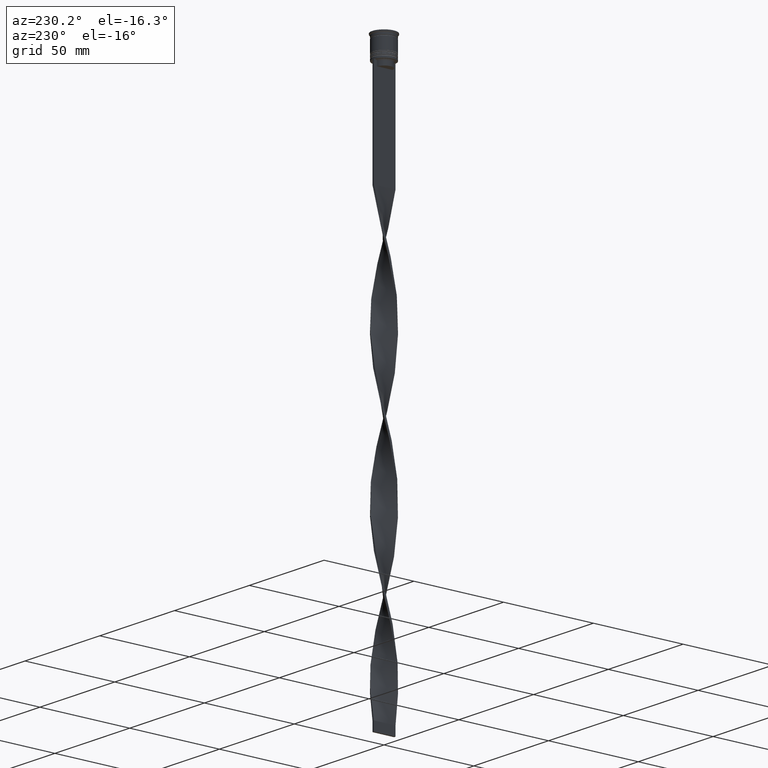
[diagram: clean part render]
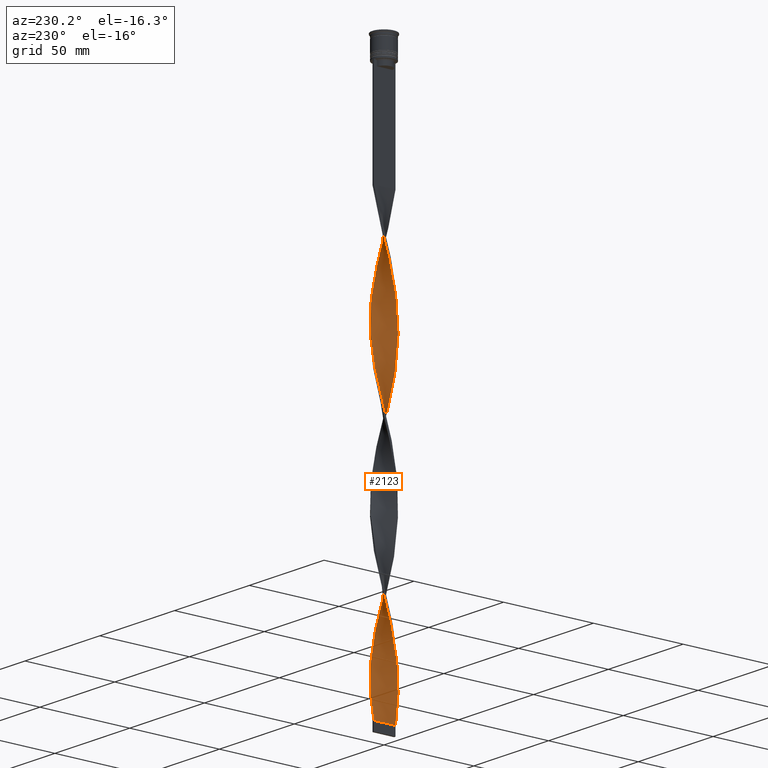
[diagram: same view with one face highlighted and labeled with its STEP entity id]
A machine part, auxiliary view. The second image highlights one B-rep face of the part: STEP entity #2123.
In plain terms, the highlighted face is a freeform B-spline surface patch.
Its self-contained STEP definition (entity closure, byte-faithful):
#7 = CARTESIAN_POINT ( 'NONE',  ( 3.889087296526011706, -4.596194077712560500, -168.0833333333333712 ) ) ;
#8 = CARTESIAN_POINT ( 'NONE',  ( 3.527358977712831134, 4.902271885939097906, -130.2416666666667027 ) ) ;
#10 = ORIENTED_EDGE ( 'NONE', *, *, #1349, .F. ) ;
#11 = CARTESIAN_POINT ( 'NONE',  ( 5.969343698769574935, -0.9173149989399220772, -102.3583333333333485 ) ) ;
#25 = CARTESIAN_POINT ( 'NONE',  ( -3.572323752398605556, -4.869603064867703779, -293.5583333333333940 ) ) ;
#26 = CARTESIAN_POINT ( 'NONE',  ( -4.290116269486020428, 4.250815615339193165, -166.0916666666666686 ) ) ;
#31 = CARTESIAN_POINT ( 'NONE',  ( -5.847912811050710147, -1.432450960538953044, -191.9833333333333485 ) ) ;
#47 = CARTESIAN_POINT ( 'NONE',  ( 0.9722102409477152429, 5.960649146587692293, -225.8416666666666970 ) ) ;
#48 = CARTESIAN_POINT ( 'NONE',  ( -4.596194077712557835, 3.889087296526011706, -168.0833333333333712 ) ) ;
#55 = CARTESIAN_POINT ( 'NONE',  ( -1.892691680130197174, 5.735176475513731553, -154.1416666666666799 ) ) ;
#69 = CARTESIAN_POINT ( 'NONE',  ( -0.5000000000000009992, -6.000000000000000888, -307.5000000000000000 ) ) ;
#70 = CARTESIAN_POINT ( 'NONE',  ( 0.9722102409477109131, -5.960649146587691405, -70.49166666666670267 ) ) ;
#75 = CARTESIAN_POINT ( 'NONE',  ( -4.596194077712557835, 3.889087296526011706, -168.0833333333333712 ) ) ;
#89 = CARTESIAN_POINT ( 'NONE',  ( -2.329630224397260196, 5.551830600583447684, -156.1333333333333542 ) ) ;
#94 = CARTESIAN_POINT ( 'NONE',  ( -2.766568768664324995, 5.368484725653163814, -158.1250000000000284 ) ) ;
#110 = CARTESIAN_POINT ( 'NONE',  ( 2.717047055421899948, 5.393717298852743980, -293.5583333333334508 ) ) ;
#136 = CARTESIAN_POINT ( 'NONE',  ( -4.869603064867704667, -3.572323752398602004, -201.9416666666667197 ) ) ;
#140 = CARTESIAN_POINT ( 'NONE',  ( -6.004347276090943097, -0.4447626199438159400, -112.3166666666666771 ) ) ;
#141 = CARTESIAN_POINT ( 'NONE',  ( 5.999999999999999112, 0.4999999999999998890, -267.6666666666667425 ) ) ;
#156 = CARTESIAN_POINT ( 'NONE',  ( -5.752351491147214446, 1.839832417264297026, -178.0416666666667140 ) ) ;
#160 = CARTESIAN_POINT ( 'NONE',  ( -5.960649146587693181, 0.9722102409477114682, -106.3416666666666686 ) ) ;
#175 = CARTESIAN_POINT ( 'NONE',  ( 4.290116269486021316, -4.250815615339192277, -245.7583333333333826 ) ) ;
#180 = CARTESIAN_POINT ( 'NONE',  ( -5.368484725653164702, 2.766568768664326772, -98.37500000000001421 ) ) ;
#197 = CARTESIAN_POINT ( 'NONE',  ( -5.393717298852745756, 2.717047055421897728, -174.0583333333333371 ) ) ;
#202 = CARTESIAN_POINT ( 'NONE',  ( -6.004347276090943097, -0.4447626199438159400, -112.3166666666666771 ) ) ;
#203 = CARTESIAN_POINT ( 'NONE',  ( -0.4447626199438162731, 6.004347276090943097, -72.48333333333334849 ) ) ;
#215 = CARTESIAN_POINT ( 'NONE',  ( -0.4447626199438174388, -6.004347276090940433, -223.8500000000000227 ) ) ;
#219 = CARTESIAN_POINT ( 'NONE',  ( -3.889087296526011706, 4.596194077712559611, -88.41666666666667140 ) ) ;
#225 = VERTEX_POINT ( 'NONE', #1643 ) ;
#234 = CARTESIAN_POINT ( 'NONE',  ( 0.9173149989399225213, 5.969343698769574935, -301.5250000000000341 ) ) ;
#238 = CARTESIAN_POINT ( 'NONE',  ( 2.766568768664329880, 5.368484725653162926, -217.8750000000000568 ) ) ;
#257 = CARTESIAN_POINT ( 'NONE',  ( 3.169446260531464610, -5.119043895260433352, -239.7833333333333599 ) ) ;
#261 = CARTESIAN_POINT ( 'NONE',  ( 2.278439736343095934, -5.573034394999981878, -160.1166666666666742 ) ) ;
#263 = CARTESIAN_POINT ( 'NONE',  ( -0.4447626199438162731, 6.004347276090943097, -231.8166666666666629 ) ) ;
#265 = CARTESIAN_POINT ( 'NONE',  ( 4.290116269486021316, -4.250815615339192277, -86.42499999999999716 ) ) ;
#275 = EDGE_CURVE ( 'NONE', #225, #3604, #1063, .T. ) ;
#280 = CARTESIAN_POINT ( 'NONE',  ( 0.02778975905228940960, 6.039350853412312148, -229.8250000000000171 ) ) ;
#281 = CARTESIAN_POINT ( 'NONE',  ( 4.290116269486023981, 4.250815615339191389, -209.9083333333333883 ) ) ;
#296 = CARTESIAN_POINT ( 'NONE',  ( -5.860847594958396911, -1.378573708102107220, -275.6333333333333258 ) ) ;
#297 = CARTESIAN_POINT ( 'NONE',  ( -5.860847594958396911, -1.378573708102107220, -275.6333333333333258 ) ) ;
#300 = CARTESIAN_POINT ( 'NONE',  ( 2.766568768664325884, -5.368484725653162926, -78.45833333333334281 ) ) ;
#316 = CARTESIAN_POINT ( 'NONE',  ( 5.960649146587692293, -0.9722102409477147988, -186.0083333333333258 ) ) ;
#317 = CARTESIAN_POINT ( 'NONE',  ( 4.250815615339191389, -4.290116269486023981, -170.0750000000000455 ) ) ;
#334 = CARTESIAN_POINT ( 'NONE',  ( 5.551830600583448572, -2.329630224397262417, -180.0333333333333599 ) ) ;
#335 = CARTESIAN_POINT ( 'NONE',  ( 3.122203016567365097, 5.147994592395919611, -132.2333333333333485 ) ) ;
#341 = CARTESIAN_POINT ( 'NONE',  ( -4.902271885939096130, 3.527358977712832910, -170.0750000000000455 ) ) ;
#347 = B_SPLINE_CURVE_WITH_KNOTS ( 'NONE', 3,
 ( #405, #3274, #1669, #2939 ),
 .UNSPECIFIED., .F., .F.,
 ( 4, 4 ),
 ( 0.000000000000000000, 1.000000000000000000 ),
 .UNSPECIFIED. ) ;
#355 = CARTESIAN_POINT ( 'NONE',  ( -0.9173149989399220772, 5.969343698769576712, -233.8083333333333371 ) ) ;
#356 = CARTESIAN_POINT ( 'NONE',  ( -0.9722102409477103580, 5.960649146587691405, -150.1583333333333599 ) ) ;
#361 = CARTESIAN_POINT ( 'NONE',  ( -5.735176475513732441, -1.892691680130194065, -193.9750000000000227 ) ) ;
#377 = CARTESIAN_POINT ( 'NONE',  ( 3.572323752398604224, -4.869603064867703779, -82.44166666666666288 ) ) ;
#383 = CARTESIAN_POINT ( 'NONE',  ( 5.368484725653162926, 2.766568768664325439, -118.2916666666666998 ) ) ;
#397 = CARTESIAN_POINT ( 'NONE',  ( 5.368484725653162926, 2.766568768664325439, -118.2916666666666998 ) ) ;
#402 = CARTESIAN_POINT ( 'NONE',  ( -5.999999999999999112, -0.4999999999999991673, -188.0000000000000000 ) ) ;
#405 = CARTESIAN_POINT ( 'NONE',  ( -0.5000000000000009992, -6.000000000000000888, -307.5000000000000000 ) ) ;
#415 = CARTESIAN_POINT ( 'NONE',  ( 2.329630224397261085, -5.551830600583446795, -76.46666666666666856 ) ) ;
#421 = CARTESIAN_POINT ( 'NONE',  ( 4.290116269486021316, -4.250815615339192277, -245.7583333333333826 ) ) ;
#436 = CARTESIAN_POINT ( 'NONE',  ( 5.147994592395920499, -3.122203016567364209, -251.7333333333333769 ) ) ;
#443 = CARTESIAN_POINT ( 'NONE',  ( -3.122203016567365541, 5.147994592395922275, -84.43333333333333712 ) ) ;
#462 = CARTESIAN_POINT ( 'NONE',  ( 4.560209340103447140, 3.931220010942311216, -283.6000000000000227 ) ) ;
#466 = CARTESIAN_POINT ( 'NONE',  ( -0.5000000000000009992, -6.000000000000000888, -148.1666666666666572 ) ) ;
#481 = CARTESIAN_POINT ( 'NONE',  ( 4.869603064867703779, 3.572323752398604224, -281.6083333333334622 ) ) ;
#485 = CARTESIAN_POINT ( 'NONE',  ( 0.02778975905228941307, 6.039350853412311260, -70.49166666666670267 ) ) ;
#501 = CARTESIAN_POINT ( 'NONE',  ( -3.527358977712832910, -4.902271885939095242, -209.9083333333333883 ) ) ;
#507 = CARTESIAN_POINT ( 'NONE',  ( -5.393717298852746644, -2.717047055421899948, -122.2750000000000341 ) ) ;
#523 = CARTESIAN_POINT ( 'NONE',  ( 3.169446260531464610, -5.119043895260433352, -239.7833333333333599 ) ) ;
#524 = CARTESIAN_POINT ( 'NONE',  ( -1.378573708102108997, -5.860847594958394247, -219.8666666666666742 ) ) ;
#528 = CARTESIAN_POINT ( 'NONE',  ( -2.766568768664327216, -5.368484725653164702, -138.2083333333333144 ) ) ;
#544 = CARTESIAN_POINT ( 'NONE',  ( -5.969343698769576712, -0.9173149989399216331, -114.3083333333333655 ) ) ;
#545 = CARTESIAN_POINT ( 'NONE',  ( 5.960649146587693181, -0.9722102409477149099, -186.0083333333333258 ) ) ;
#558 = CARTESIAN_POINT ( 'NONE',  ( 3.122203016567365097, 5.147994592395919611, -291.5666666666667197 ) ) ;
#561 = CARTESIAN_POINT ( 'NONE',  ( 0.02778975905228940960, 6.039350853412312148, -70.49166666666668846 ) ) ;
#562 = CARTESIAN_POINT ( 'NONE',  ( 0.02778975905228941307, 6.039350853412311260, -229.8250000000000455 ) ) ;
#566 = CARTESIAN_POINT ( 'NONE',  ( 3.572323752398604224, -4.869603064867703779, -82.44166666666667709 ) ) ;
#584 = CARTESIAN_POINT ( 'NONE',  ( -2.717047055421899948, 5.393717298852747533, -241.7750000000000341 ) ) ;
#585 = CARTESIAN_POINT ( 'NONE',  ( 1.378573708102106776, -5.860847594958396911, -156.1333333333333542 ) ) ;
#599 = CARTESIAN_POINT ( 'NONE',  ( -5.847912811050711923, 1.432450960538954821, -263.6833333333333940 ) ) ;
#600 = CARTESIAN_POINT ( 'NONE',  ( -5.960649146587693181, 0.9722102409477114682, -265.6750000000000682 ) ) ;
#616 = CARTESIAN_POINT ( 'NONE',  ( 6.004347276090943097, 0.4447626199438150518, -191.9833333333333485 ) ) ;
#617 = CARTESIAN_POINT ( 'NONE',  ( 6.039350853412311260, -0.02778975905228783447, -189.9916666666667027 ) ) ;
#638 = CARTESIAN_POINT ( 'NONE',  ( 6.000000000000000888, -0.5000000000000013323, -188.0000000000000000 ) ) ;
#639 = CARTESIAN_POINT ( 'NONE',  ( 4.250815615339192277, 4.290116269486020428, -126.2583333333333258 ) ) ;
#646 = CARTESIAN_POINT ( 'NONE',  ( 5.999999999999999112, 0.4999999999999998890, -108.3333333333333428 ) ) ;
#657 = CARTESIAN_POINT ( 'NONE',  ( 4.290116269486023981, 4.250815615339191389, -209.9083333333333599 ) ) ;
#658 = CARTESIAN_POINT ( 'NONE',  ( -3.169446260531463722, 5.119043895260433352, -160.1166666666666742 ) ) ;
#665 = CARTESIAN_POINT ( 'NONE',  ( -0.9722102409477102469, 5.960649146587690517, -150.1583333333333599 ) ) ;
#678 = CARTESIAN_POINT ( 'NONE',  ( 6.004347276090941321, -0.4447626199438162731, -104.3499999999999943 ) ) ;
#683 = CARTESIAN_POINT ( 'NONE',  ( -4.290116269486020428, 4.250815615339193165, -166.0916666666666970 ) ) ;
#703 = CARTESIAN_POINT ( 'NONE',  ( -1.892691680130198728, -5.735176475513733330, -301.5250000000000341 ) ) ;
#710 = CARTESIAN_POINT ( 'NONE',  ( -4.560209340103448028, -3.931220010942310328, -203.9333333333333655 ) ) ;
#724 = CARTESIAN_POINT ( 'NONE',  ( 1.432450960538954154, -5.847912811050710147, -72.48333333333334849 ) ) ;
#729 = CARTESIAN_POINT ( 'NONE',  ( -5.573034394999980101, 2.278439736343096822, -176.0500000000000114 ) ) ;
#744 = CARTESIAN_POINT ( 'NONE',  ( 5.999999999999999112, 0.4999999999999998890, -267.6666666666667425 ) ) ;
#748 = CARTESIAN_POINT ( 'NONE',  ( -3.931220010942313881, -4.560209340103448028, -132.2333333333333485 ) ) ;
#749 = CARTESIAN_POINT ( 'NONE',  ( 5.368484725653162926, 2.766568768664325439, -277.6250000000000568 ) ) ;
#764 = CARTESIAN_POINT ( 'NONE',  ( -5.368484725653162037, -2.766568768664326772, -197.9583333333333997 ) ) ;
#770 = CARTESIAN_POINT ( 'NONE',  ( -5.119043895260434240, 3.169446260531465498, -96.38333333333335418 ) ) ;
#771 = CARTESIAN_POINT ( 'NONE',  ( 3.572323752398604224, -4.869603064867703779, -241.7750000000000341 ) ) ;
#790 = CARTESIAN_POINT ( 'NONE',  ( -3.889087296526011706, -4.596194077712557835, -207.9166666666666572 ) ) ;
#794 = CARTESIAN_POINT ( 'NONE',  ( -4.560209340103448916, 3.931220010942312992, -92.40000000000000568 ) ) ;
#810 = CARTESIAN_POINT ( 'NONE',  ( 5.735176475513731553, 1.892691680130197396, -273.6416666666666515 ) ) ;
#813 = CARTESIAN_POINT ( 'NONE',  ( -6.000000000000000888, 0.5000000000000005551, -108.3333333333333428 ) ) ;
#827 = CARTESIAN_POINT ( 'NONE',  ( 2.329630224397261085, -5.551830600583446795, -235.8000000000000114 ) ) ;
#832 = CARTESIAN_POINT ( 'NONE',  ( -3.931220010942313881, -4.560209340103448028, -132.2333333333333485 ) ) ;
#833 = CARTESIAN_POINT ( 'NONE',  ( -1.892691680130198728, -5.735176475513733330, -142.1916666666666913 ) ) ;
#852 = CARTESIAN_POINT ( 'NONE',  ( 1.432450960538954154, -5.847912811050710147, -231.8166666666666629 ) ) ;
#856 = CARTESIAN_POINT ( 'NONE',  ( -5.573034394999981878, -2.278439736343096378, -279.6166666666666742 ) ) ;
#868 = CARTESIAN_POINT ( 'NONE',  ( 2.329630224397261085, -5.551830600583446795, -235.8000000000000114 ) ) ;
#873 = CARTESIAN_POINT ( 'NONE',  ( 0.9173149989399214110, -5.969343698769576712, -154.1416666666666799 ) ) ;
#874 = CARTESIAN_POINT ( 'NONE',  ( 0.5000000000000002220, 6.000000000000000888, -227.8333333333333428 ) ) ;
#879 = ORIENTED_EDGE ( 'NONE', *, *, #3958, .F. ) ;
#890 = CARTESIAN_POINT ( 'NONE',  ( 5.119043895260433352, -3.169446260531466386, -176.0500000000000114 ) ) ;
#893 = CARTESIAN_POINT ( 'NONE',  ( 5.368484725653162926, -2.766568768664329436, -178.0416666666667140 ) ) ;
#914 = CARTESIAN_POINT ( 'NONE',  ( -0.4447626199438162731, 6.004347276090943097, -231.8166666666666629 ) ) ;
#915 = CARTESIAN_POINT ( 'NONE',  ( 5.147994592395923164, 3.122203016567364209, -203.9333333333333655 ) ) ;
#919 = CARTESIAN_POINT ( 'NONE',  ( 0.5000000000000002220, -5.999999999999999112, -68.50000000000000000 ) ) ;
#920 = DIRECTION ( 'NONE',  ( 0.000000000000000000, 1.000000000000000000, 0.000000000000000000 ) ) ;
#931 = ORIENTED_EDGE ( 'NONE', *, *, #1742, .T. ) ;
#932 = CARTESIAN_POINT ( 'NONE',  ( 3.572323752398604224, 4.869603064867704667, -213.8916666666666799 ) ) ;
#933 = CARTESIAN_POINT ( 'NONE',  ( -3.122203016567365541, 5.147994592395922275, -243.7666666666666799 ) ) ;
#936 = CARTESIAN_POINT ( 'NONE',  ( 4.902271885939097906, -3.527358977712830246, -90.40833333333335986 ) ) ;
#947 = CARTESIAN_POINT ( 'NONE',  ( -4.290116269486023093, -4.250815615339194053, -289.5750000000000455 ) ) ;
#948 = CARTESIAN_POINT ( 'NONE',  ( -0.4999999999999994449, 5.999999999999999112, -148.1666666666666572 ) ) ;
#951 = CARTESIAN_POINT ( 'NONE',  ( -1.432450960538953488, 5.847912811050710147, -152.1500000000000057 ) ) ;
#970 = CARTESIAN_POINT ( 'NONE',  ( -1.378573708102107664, 5.860847594958396023, -235.8000000000000114 ) ) ;
#971 = CARTESIAN_POINT ( 'NONE',  ( -1.432450960538955043, -5.847912811050711035, -303.5166666666666515 ) ) ;
#978 = CARTESIAN_POINT ( 'NONE',  ( 0.9173149989399225213, 5.969343698769574935, -142.1916666666666913 ) ) ;
#990 = CARTESIAN_POINT ( 'NONE',  ( -4.902271885939099683, -3.527358977712830246, -285.5916666666666401 ) ) ;
#997 = CARTESIAN_POINT ( 'NONE',  ( 5.119043895260433352, 3.169446260531464610, -120.2833333333333456 ) ) ;
#1010 = CARTESIAN_POINT ( 'NONE',  ( 2.717047055421899948, 5.393717298852743980, -134.2249999999999943 ) ) ;
#1015 = CARTESIAN_POINT ( 'NONE',  ( -5.551830600583447684, -2.329630224397259752, -195.9666666666666686 ) ) ;
#1033 = CARTESIAN_POINT ( 'NONE',  ( 4.560209340103447140, 3.931220010942311216, -124.2666666666666799 ) ) ;
#1040 = CARTESIAN_POINT ( 'NONE',  ( -2.278439736343097710, -5.573034394999980101, -215.8833333333333542 ) ) ;
#1053 = CARTESIAN_POINT ( 'NONE',  ( 0.5000000000000002220, -5.999999999999999112, -68.50000000000000000 ) ) ;
#1056 = CARTESIAN_POINT ( 'NONE',  ( -5.969343698769574047, 0.9173149989399200788, -182.0250000000000341 ) ) ;
#1062 = CARTESIAN_POINT ( 'NONE',  ( 0.5000000000000002220, -5.999999999999999112, -227.8333333333333428 ) ) ;
#1063 =( BOUNDED_CURVE ( )  B_SPLINE_CURVE ( 2, ( #2085, #561, #2131, #3736, #1791, #2733, #3355, #1749, #2717, #3693, #4063, #3986, #2437, #1769, #2065, #180, #1444, #1123, #2396, #1499, #813, #3048, #202, #544, #1480, #4045, #1162, #4003, #3417, #3673, #3378, #1463, #832, #1207, #2108, #528, #3065, #1808, #3083, #1827, #2773, #1188, #2458, #873, #2146, #3105, #261, #1522, #2795, #2475, #7, #3515, #1307, #3494, #890, #4080, #334, #1616, #3123, #316, #638, #3832, #616, #4102, #1541, #2244, #2220, #1263, #3181, #1281, #2580, #657, #1246, #932, #2165, #1930, #3458, #2186, #3200, #47, #3438, #280, #914, #355, #970, #2850, #1909, #584, #1222, #1579, #2536, #3794, #2812, #1850, #3811, #3160, #3776, #3140, #599, #2497, #1869, #2867, #2886, #2202, #296, #3475, #2517, #1557, #2829, #1886, #2553, #947, #1596, #25, #3875, #3555, #2330, #3245, #3283, #2666, #69 ),
 .UNSPECIFIED., .F., .T. ) 
 B_SPLINE_CURVE_WITH_KNOTS ( ( 3, 2, 2, 2, 2, 2, 2, 2, 2, 2, 2, 2, 2, 2, 2, 2, 2, 2, 2, 2, 2, 2, 2, 2, 2, 2, 2, 2, 2, 2, 2, 2, 2, 2, 2, 2, 2, 2, 2, 2, 2, 2, 2, 2, 2, 2, 2, 2, 2, 2, 2, 2, 2, 2, 2, 2, 2, 2, 2, 2, 3 ),
 ( 0.000000000000000000, 0.01250000000000000243, 0.02500000000000000486, 0.03749999999999999861, 0.05000000000000000971, 0.06250000000000000000, 0.07499999999999999722, 0.08749999999999998057, 0.1000000000000000194, 0.1125000000000000028, 0.1250000000000000000, 0.1375000000000000111, 0.1499999999999999944, 0.1625000000000000056, 0.1749999999999999611, 0.1875000000000000000, 0.2000000000000000389, 0.2124999999999999944, 0.2250000000000000056, 0.2374999999999999611, 0.2500000000000000000, 0.2625000000000000111, 0.2750000000000000222, 0.2874999999999999778, 0.2999999999999999889, 0.3125000000000000000, 0.3250000000000000111, 0.3375000000000000777, 0.3499999999999999223, 0.3624999999999999889, 0.3750000000000000000, 0.3875000000000000111, 0.4000000000000000777, 0.4124999999999999223, 0.4249999999999999889, 0.4375000000000000000, 0.4500000000000000111, 0.4625000000000000777, 0.4749999999999999223, 0.4874999999999999889, 0.5000000000000000000, 0.5124999999999999556, 0.5250000000000000222, 0.5374999999999999778, 0.5500000000000000444, 0.5625000000000000000, 0.5749999999999999556, 0.5875000000000000222, 0.5999999999999999778, 0.6125000000000000444, 0.6250000000000000000, 0.6374999999999999556, 0.6500000000000000222, 0.6624999999999999778, 0.6750000000000001554, 0.6875000000000000000, 0.6999999999999998446, 0.7125000000000000222, 0.7249999999999999778, 0.7375000000000001554, 0.7500000000000000000 ),
 .UNSPECIFIED. ) 
 CURVE ( )  GEOMETRIC_REPRESENTATION_ITEM ( )  RATIONAL_B_SPLINE_CURVE ( ( 1.000000000000000000, 0.9969173337331279638, 1.000000000000000000, 0.9969173337331279638, 1.000000000000000000, 0.9969173337331279638, 1.000000000000000000, 0.9969173337331279638, 1.000000000000000000, 0.9969173337331279638, 1.000000000000000000, 0.9969173337331279638, 1.000000000000000000, 0.9969173337331279638, 1.000000000000000000, 0.9969173337331279638, 1.000000000000000000, 0.9969173337331279638, 1.000000000000000000, 0.9969173337331279638, 1.000000000000000000, 0.9969173337331279638, 1.000000000000000000, 0.9969173337331279638, 1.000000000000000000, 0.9969173337331279638, 1.000000000000000000, 0.9969173337331279638, 1.000000000000000000, 0.9969173337331279638, 1.000000000000000000, 0.9969173337331279638, 1.000000000000000000, 0.9969173337331279638, 1.000000000000000000, 0.9969173337331279638, 1.000000000000000000, 0.9969173337331279638, 1.000000000000000000, 0.9969173337331279638, 1.000000000000000000, 0.9969173337331279638, 1.000000000000000000, 0.9969173337331279638, 1.000000000000000000, 0.9969173337331279638, 1.000000000000000000, 0.9969173337331279638, 1.000000000000000000, 0.9969173337331279638, 1.000000000000000000, 0.9969173337331279638, 1.000000000000000000, 0.9969173337331279638, 1.000000000000000000, 0.9969173337331279638, 1.000000000000000000, 0.9969173337331279638, 1.000000000000000000, 0.9969173337331279638, 1.000000000000000000, 0.9969173337331279638, 1.000000000000000000, 0.9969173337331279638, 1.000000000000000000, 0.9969173337331279638, 1.000000000000000000, 0.9969173337331279638, 1.000000000000000000, 0.9969173337331279638, 1.000000000000000000, 0.9969173337331279638, 1.000000000000000000, 0.9969173337331279638, 1.000000000000000000, 0.9969173337331279638, 1.000000000000000000, 0.9969173337331279638, 1.000000000000000000, 0.9969173337331279638, 1.000000000000000000, 0.9969173337331279638, 1.000000000000000000, 0.9969173337331279638, 1.000000000000000000, 0.9969173337331279638, 1.000000000000000000, 0.9969173337331279638, 1.000000000000000000, 0.9969173337331279638, 1.000000000000000000, 0.9969173337331279638, 1.000000000000000000, 0.9969173337331279638, 1.000000000000000000, 0.9969173337331279638, 1.000000000000000000, 0.9969173337331279638, 1.000000000000000000, 0.9969173337331279638, 1.000000000000000000, 0.9969173337331279638, 1.000000000000000000, 0.9969173337331279638, 1.000000000000000000, 0.9969173337331279638, 1.000000000000000000, 0.9969173337331279638, 1.000000000000000000, 0.9969173337331279638, 1.000000000000000000, 0.9969173337331279638, 1.000000000000000000, 0.9969173337331279638, 1.000000000000000000, 0.9969173337331279638, 1.000000000000000000, 0.9969173337331279638, 1.000000000000000000, 0.9969173337331279638, 1.000000000000000000 ) ) 
 REPRESENTATION_ITEM ( '' )  );
#1077 = CARTESIAN_POINT ( 'NONE',  ( -1.378573708102108997, -5.860847594958394247, -219.8666666666666742 ) ) ;
#1081 = CARTESIAN_POINT ( 'NONE',  ( -1.432450960538955043, -5.847912811050711035, -144.1833333333333371 ) ) ;
#1097 = CARTESIAN_POINT ( 'NONE',  ( 2.766568768664325884, -5.368484725653162926, -237.7916666666667140 ) ) ;
#1120 = CARTESIAN_POINT ( 'NONE',  ( 3.122203016567365097, 5.147994592395919611, -291.5666666666667197 ) ) ;
#1123 = CARTESIAN_POINT ( 'NONE',  ( -5.735176475513733330, 1.892691680130198728, -102.3583333333333485 ) ) ;
#1124 = CARTESIAN_POINT ( 'NONE',  ( -2.278439736343096378, 5.573034394999981878, -80.45000000000000284 ) ) ;
#1135 = EDGE_LOOP ( 'NONE', ( #879, #931, #10, #3529 ) ) ;
#1137 = CARTESIAN_POINT ( 'NONE',  ( 3.931220010942312104, -4.560209340103447140, -243.7666666666666799 ) ) ;
#1141 = CARTESIAN_POINT ( 'NONE',  ( -4.596194077712559611, -3.889087296526011706, -128.2500000000000000 ) ) ;
#1157 = CARTESIAN_POINT ( 'NONE',  ( -0.4999999999999994449, 5.999999999999999112, -307.5000000000000000 ) ) ;
#1162 = CARTESIAN_POINT ( 'NONE',  ( -5.573034394999981878, -2.278439736343096378, -120.2833333333333456 ) ) ;
#1164 = CARTESIAN_POINT ( 'NONE',  ( 4.902271885939098794, 3.527358977712832910, -205.9250000000000114 ) ) ;
#1188 = CARTESIAN_POINT ( 'NONE',  ( -0.02778975905229016594, -6.039350853412312148, -150.1583333333333599 ) ) ;
#1189 = CARTESIAN_POINT ( 'NONE',  ( 4.869603064867705555, -3.572323752398603780, -174.0583333333333371 ) ) ;
#1202 = CARTESIAN_POINT ( 'NONE',  ( 5.960649146587690517, 0.9722102409477104690, -269.6583333333334167 ) ) ;
#1207 = CARTESIAN_POINT ( 'NONE',  ( -3.572323752398605556, -4.869603064867703779, -134.2250000000000227 ) ) ;
#1208 = CARTESIAN_POINT ( 'NONE',  ( 3.572323752398604224, 4.869603064867705555, -213.8916666666666799 ) ) ;
#1222 = CARTESIAN_POINT ( 'NONE',  ( -3.122203016567365541, 5.147994592395922275, -243.7666666666666799 ) ) ;
#1224 = CARTESIAN_POINT ( 'NONE',  ( -5.368484725653164702, 2.766568768664326772, -257.7083333333333144 ) ) ;
#1241 = CARTESIAN_POINT ( 'NONE',  ( 1.378573708102107886, 5.860847594958394247, -299.5333333333333030 ) ) ;
#1246 = CARTESIAN_POINT ( 'NONE',  ( 3.931220010942314769, 4.560209340103448028, -211.9000000000000057 ) ) ;
#1247 = CARTESIAN_POINT ( 'NONE',  ( 6.004347276090943097, 0.4447626199438150518, -191.9833333333333485 ) ) ;
#1263 = CARTESIAN_POINT ( 'NONE',  ( 5.393717298852748421, 2.717047055421897284, -201.9416666666667197 ) ) ;
#1264 = CARTESIAN_POINT ( 'NONE',  ( 1.378573708102107886, 5.860847594958394247, -140.1999999999999886 ) ) ;
#1267 = CARTESIAN_POINT ( 'NONE',  ( 6.039350853412309483, 0.02778975905228925000, -106.3416666666666686 ) ) ;
#1281 = CARTESIAN_POINT ( 'NONE',  ( 4.902271885939098794, 3.527358977712832910, -205.9250000000000114 ) ) ;
#1282 = CARTESIAN_POINT ( 'NONE',  ( -5.147994592395922275, -3.122203016567364653, -283.6000000000000227 ) ) ;
#1287 = CARTESIAN_POINT ( 'NONE',  ( 5.752351491147216223, -1.839832417264293918, -98.37500000000001421 ) ) ;
#1307 = CARTESIAN_POINT ( 'NONE',  ( 4.560209340103448028, -3.931220010942313881, -172.0666666666666629 ) ) ;
#1308 = CARTESIAN_POINT ( 'NONE',  ( 0.5000000000000002220, -5.999999999999999112, -68.50000000000000000 ) ) ;
#1314 = CARTESIAN_POINT ( 'NONE',  ( -2.329630224397260196, 5.551830600583447684, -156.1333333333333542 ) ) ;
#1327 = CARTESIAN_POINT ( 'NONE',  ( 4.596194077712558723, -3.889087296526011261, -88.41666666666667140 ) ) ;
#1333 = CARTESIAN_POINT ( 'NONE',  ( -5.969343698769574935, 0.9173149989399200788, -182.0250000000000341 ) ) ;
#1346 = CARTESIAN_POINT ( 'NONE',  ( -2.766568768664327216, -5.368484725653164702, -297.5416666666666856 ) ) ;
#1349 = EDGE_CURVE ( 'NONE', #3604, #3180, #347, .T. ) ;
#1353 = CARTESIAN_POINT ( 'NONE',  ( -5.393717298852746644, 2.717047055421897728, -174.0583333333333371 ) ) ;
#1371 = CARTESIAN_POINT ( 'NONE',  ( 5.393717298852743980, -2.717047055421899948, -253.7250000000000512 ) ) ;
#1394 = CARTESIAN_POINT ( 'NONE',  ( -5.735176475513732441, -1.892691680130194065, -193.9749999999999943 ) ) ;
#1399 = CARTESIAN_POINT ( 'NONE',  ( 5.551830600583447684, 2.329630224397260641, -275.6333333333333258 ) ) ;
#1417 = CARTESIAN_POINT ( 'NONE',  ( 4.596194077712558723, -3.889087296526011261, -247.7500000000000284 ) ) ;
#1421 = CARTESIAN_POINT ( 'NONE',  ( -3.169446260531465498, -5.119043895260433352, -136.2166666666666686 ) ) ;
#1439 = CARTESIAN_POINT ( 'NONE',  ( -0.9173149989399203008, -5.969343698769574047, -221.8583333333333769 ) ) ;
#1444 = CARTESIAN_POINT ( 'NONE',  ( -5.551830600583448572, 2.329630224397261973, -100.3666666666666742 ) ) ;
#1445 = CARTESIAN_POINT ( 'NONE',  ( -4.250815615339194053, 4.290116269486022205, -90.40833333333334565 ) ) ;
#1460 = CARTESIAN_POINT ( 'NONE',  ( -5.551830600583447684, -2.329630224397259752, -195.9666666666666686 ) ) ;
#1463 = CARTESIAN_POINT ( 'NONE',  ( -4.290116269486023093, -4.250815615339194053, -130.2416666666667027 ) ) ;
#1464 = CARTESIAN_POINT ( 'NONE',  ( -5.551830600583448572, 2.329630224397261973, -100.3666666666666742 ) ) ;
#1477 = CARTESIAN_POINT ( 'NONE',  ( 1.839832417264293918, 5.752351491147216223, -297.5416666666666856 ) ) ;
#1480 = CARTESIAN_POINT ( 'NONE',  ( -5.860847594958396911, -1.378573708102107220, -116.3000000000000114 ) ) ;
#1481 = CARTESIAN_POINT ( 'NONE',  ( -6.000000000000000888, 0.5000000000000005551, -108.3333333333333428 ) ) ;
#1499 = CARTESIAN_POINT ( 'NONE',  ( -5.960649146587692293, 0.9722102409477114682, -106.3416666666666686 ) ) ;
#1500 = CARTESIAN_POINT ( 'NONE',  ( 5.573034394999981878, 2.278439736343095934, -199.9500000000000171 ) ) ;
#1519 = CARTESIAN_POINT ( 'NONE',  ( 4.596194077712558723, -3.889087296526011261, -247.7500000000000284 ) ) ;
#1522 = CARTESIAN_POINT ( 'NONE',  ( 2.717047055421899060, -5.393717298852747533, -162.1083333333333769 ) ) ;
#1523 = CARTESIAN_POINT ( 'NONE',  ( -2.278439736343096378, 5.573034394999981878, -239.7833333333333599 ) ) ;
#1537 = CARTESIAN_POINT ( 'NONE',  ( -0.02778975905228881632, 6.039350853412309483, -305.5083333333334963 ) ) ;
#1541 = CARTESIAN_POINT ( 'NONE',  ( 5.860847594958396911, 1.378573708102106554, -195.9666666666666686 ) ) ;
#1542 = CARTESIAN_POINT ( 'NONE',  ( 3.931220010942314769, 4.560209340103448028, -211.9000000000000057 ) ) ;
#1557 = CARTESIAN_POINT ( 'NONE',  ( -5.393717298852747533, -2.717047055421899948, -281.6083333333334053 ) ) ;
#1559 = CARTESIAN_POINT ( 'NONE',  ( -4.560209340103448916, 3.931220010942312992, -251.7333333333333769 ) ) ;
#1564 = CARTESIAN_POINT ( 'NONE',  ( 3.169446260531464610, -5.119043895260433352, -80.45000000000000284 ) ) ;
#1579 = CARTESIAN_POINT ( 'NONE',  ( -3.527358977712831134, 4.902271885939099683, -245.7583333333333826 ) ) ;
#1580 = CARTESIAN_POINT ( 'NONE',  ( -5.393717298852746644, -2.717047055421899948, -281.6083333333334622 ) ) ;
#1585 = CARTESIAN_POINT ( 'NONE',  ( 5.860847594958394247, -1.378573708102107664, -100.3666666666666742 ) ) ;
#1586 = LINE ( 'NONE', #3543, #4035 ) ;
#1596 = CARTESIAN_POINT ( 'NONE',  ( -3.931220010942313881, -4.560209340103448028, -291.5666666666667197 ) ) ;
#1597 = CARTESIAN_POINT ( 'NONE',  ( -2.766568768664324995, 5.368484725653163814, -158.1250000000000000 ) ) ;
#1602 = CARTESIAN_POINT ( 'NONE',  ( -5.752351491147214446, 1.839832417264296804, -178.0416666666667140 ) ) ;
#1616 = CARTESIAN_POINT ( 'NONE',  ( 5.735176475513733330, -1.892691680130196730, -182.0250000000000341 ) ) ;
#1617 = CARTESIAN_POINT ( 'NONE',  ( -3.572323752398603336, 4.869603064867703779, -162.1083333333333769 ) ) ;
#1622 = CARTESIAN_POINT ( 'NONE',  ( -5.119043895260434240, -3.169446260531463722, -199.9500000000000171 ) ) ;
#1639 = CARTESIAN_POINT ( 'NONE',  ( -3.169446260531465498, -5.119043895260433352, -295.5499999999999545 ) ) ;
#1643 = CARTESIAN_POINT ( 'NONE',  ( 0.5000000000000002220, 6.000000000000000888, -68.50000000000000000 ) ) ;
#1645 = CARTESIAN_POINT ( 'NONE',  ( 1.839832417264293918, 5.752351491147216223, -138.2083333333333144 ) ) ;
#1660 = CARTESIAN_POINT ( 'NONE',  ( 0.4447626199438167727, 6.004347276090940433, -144.1833333333333371 ) ) ;
#1665 = CARTESIAN_POINT ( 'NONE',  ( -3.527358977712832910, -4.902271885939095242, -209.9083333333333599 ) ) ;
#1669 = CARTESIAN_POINT ( 'NONE',  ( -0.5000000000000000000, 1.999999999999999112, -307.5000000000000000 ) ) ;
#1679 = CARTESIAN_POINT ( 'NONE',  ( 4.869603064867703779, 3.572323752398604224, -122.2750000000000341 ) ) ;
#1685 = CARTESIAN_POINT ( 'NONE',  ( 6.004347276090941321, -0.4447626199438162731, -263.6833333333333940 ) ) ;
#1702 = CARTESIAN_POINT ( 'NONE',  ( 5.573034394999979213, -2.278439736343095934, -255.7166666666666970 ) ) ;
#1710 = CARTESIAN_POINT ( 'NONE',  ( 5.147994592395920499, -3.122203016567364209, -251.7333333333333769 ) ) ;
#1726 = CARTESIAN_POINT ( 'NONE',  ( -6.039350853412309483, -0.02778975905228582913, -186.0083333333333258 ) ) ;
#1730 = CARTESIAN_POINT ( 'NONE',  ( -0.02778975905229016594, -6.039350853412311260, -150.1583333333333599 ) ) ;
#1742 = EDGE_CURVE ( 'NONE', #3064, #3180, #2102, .T. ) ;
#1746 = CARTESIAN_POINT ( 'NONE',  ( 4.250815615339192277, 4.290116269486020428, -285.5916666666666401 ) ) ;
#1749 = CARTESIAN_POINT ( 'NONE',  ( -2.717047055421899948, 5.393717298852747533, -82.44166666666667709 ) ) ;
#1765 = CARTESIAN_POINT ( 'NONE',  ( 0.5000000000000002220, -5.999999999999999112, -227.8333333333333428 ) ) ;
#1769 = CARTESIAN_POINT ( 'NONE',  ( -4.869603064867703779, 3.572323752398605556, -94.39166666666669414 ) ) ;
#1786 = CARTESIAN_POINT ( 'NONE',  ( 3.931220010942312104, -4.560209340103447140, -243.7666666666666799 ) ) ;
#1791 = CARTESIAN_POINT ( 'NONE',  ( -1.378573708102107664, 5.860847594958396023, -76.46666666666666856 ) ) ;
#1804 = CARTESIAN_POINT ( 'NONE',  ( 0.9722102409477109131, -5.960649146587690517, -229.8250000000000171 ) ) ;
#1808 = CARTESIAN_POINT ( 'NONE',  ( -1.892691680130198728, -5.735176475513733330, -142.1916666666666913 ) ) ;
#1809 = CARTESIAN_POINT ( 'NONE',  ( 2.717047055421899060, -5.393717298852746644, -162.1083333333333769 ) ) ;
#1822 = CARTESIAN_POINT ( 'NONE',  ( -0.02778975905228881632, 6.039350853412309483, -305.5083333333334394 ) ) ;
#1827 = CARTESIAN_POINT ( 'NONE',  ( -0.9722102409477118012, -5.960649146587692293, -146.1750000000000114 ) ) ;
#1828 = CARTESIAN_POINT ( 'NONE',  ( 1.839832417264293252, -5.752351491147218887, -158.1250000000000000 ) ) ;
#1845 = CARTESIAN_POINT ( 'NONE',  ( 0.4447626199438167727, 6.004347276090940433, -303.5166666666666515 ) ) ;
#1850 = CARTESIAN_POINT ( 'NONE',  ( -4.869603064867703779, 3.572323752398605556, -253.7250000000000227 ) ) ;
#1851 = CARTESIAN_POINT ( 'NONE',  ( 5.393717298852747533, 2.717047055421897284, -201.9416666666667197 ) ) ;
#1869 = CARTESIAN_POINT ( 'NONE',  ( -6.000000000000000888, 0.5000000000000005551, -267.6666666666667425 ) ) ;
#1870 = CARTESIAN_POINT ( 'NONE',  ( -6.000000000000000888, 0.5000000000000005551, -267.6666666666667425 ) ) ;
#1874 = CARTESIAN_POINT ( 'NONE',  ( 2.329630224397261085, -5.551830600583446795, -76.46666666666666856 ) ) ;
#1886 = CARTESIAN_POINT ( 'NONE',  ( -4.902271885939099683, -3.527358977712830246, -285.5916666666666970 ) ) ;
#1887 = CARTESIAN_POINT ( 'NONE',  ( -6.039350853412311260, 0.02778975905228984675, -269.6583333333334167 ) ) ;
#1909 = CARTESIAN_POINT ( 'NONE',  ( -2.278439736343096378, 5.573034394999981878, -239.7833333333333599 ) ) ;
#1910 = CARTESIAN_POINT ( 'NONE',  ( -3.931220010942313881, -4.560209340103448028, -291.5666666666667197 ) ) ;
#1917 = CARTESIAN_POINT ( 'NONE',  ( -3.169446260531463722, 5.119043895260433352, -160.1166666666666742 ) ) ;
#1930 = CARTESIAN_POINT ( 'NONE',  ( 2.766568768664329880, 5.368484725653162926, -217.8750000000000284 ) ) ;
#1931 = CARTESIAN_POINT ( 'NONE',  ( 5.119043895260433352, 3.169446260531464610, -120.2833333333333456 ) ) ;
#1937 = CARTESIAN_POINT ( 'NONE',  ( -3.572323752398603780, 4.869603064867703779, -162.1083333333333769 ) ) ;
#1951 = CARTESIAN_POINT ( 'NONE',  ( 5.847912811050710147, 1.432450960538953932, -112.3166666666666771 ) ) ;
#1956 = CARTESIAN_POINT ( 'NONE',  ( 5.573034394999979213, -2.278439736343095934, -96.38333333333335418 ) ) ;
#1975 = CARTESIAN_POINT ( 'NONE',  ( 4.290116269486021316, -4.250815615339192277, -86.42499999999999716 ) ) ;
#1981 = CARTESIAN_POINT ( 'NONE',  ( -4.250815615339191389, -4.290116269486022205, -205.9250000000000114 ) ) ;
#1994 = CARTESIAN_POINT ( 'NONE',  ( 3.169446260531464610, -5.119043895260433352, -80.45000000000000284 ) ) ;
#1999 = CARTESIAN_POINT ( 'NONE',  ( 5.847912811050710147, 1.432450960538953932, -112.3166666666666771 ) ) ;
#2004 = CARTESIAN_POINT ( 'NONE',  ( -0.5000000000000009992, -6.000000000000000888, -307.5000000000000000 ) ) ;
#2014 = CARTESIAN_POINT ( 'NONE',  ( 3.572323752398604224, -4.869603064867703779, -241.7750000000000625 ) ) ;
#2021 = CARTESIAN_POINT ( 'NONE',  ( -4.869603064867704667, 3.572323752398605556, -94.39166666666669414 ) ) ;
#2022 = CARTESIAN_POINT ( 'NONE',  ( 4.869603064867703779, 3.572323752398604224, -281.6083333333334053 ) ) ;
#2039 = CARTESIAN_POINT ( 'NONE',  ( 4.902271885939097906, -3.527358977712830246, -249.7416666666666742 ) ) ;
#2046 = CARTESIAN_POINT ( 'NONE',  ( -0.9722102409477118012, -5.960649146587693181, -146.1749999999999829 ) ) ;
#2047 = CARTESIAN_POINT ( 'NONE',  ( 5.573034394999979213, -2.278439736343095934, -255.7166666666666970 ) ) ;
#2062 = CARTESIAN_POINT ( 'NONE',  ( -2.278439736343097710, -5.573034394999980101, -215.8833333333333542 ) ) ;
#2065 = CARTESIAN_POINT ( 'NONE',  ( -5.119043895260434240, 3.169446260531465498, -96.38333333333335418 ) ) ;
#2066 = CARTESIAN_POINT ( 'NONE',  ( -5.735176475513733330, 1.892691680130198728, -102.3583333333333343 ) ) ;
#2082 = CARTESIAN_POINT ( 'NONE',  ( 5.752351491147216223, -1.839832417264293918, -257.7083333333333144 ) ) ;
#2085 = CARTESIAN_POINT ( 'NONE',  ( 0.5000000000000002220, 6.000000000000000888, -68.50000000000000000 ) ) ;
#2086 = CARTESIAN_POINT ( 'NONE',  ( -5.368484725653164702, 2.766568768664326772, -98.37500000000002842 ) ) ;
#2102 =( BOUNDED_CURVE ( )  B_SPLINE_CURVE ( 2, ( #919, #3461, #3421, #3798, #1874, #300, #1564, #566, #3110, #265, #2837, #936, #3585, #3503, #1956, #1287, #1585, #11, #2855, #1267, #646, #3229, #1999, #2561, #3841, #383, #997, #3563, #2270, #2251, #2936, #2226, #2894, #2540, #3815, #1645, #3271, #978, #3523, #2917, #3541, #665, #951, #55, #1314, #94, #1917, #1937, #3189, #683, #75, #341, #3206, #1353, #729, #1602, #2873, #1333, #2605, #3862, #402, #3882, #31, #361, #1015, #2290, #1622, #2586, #710, #1981, #3251, #1665, #2626, #3903, #1040, #2317, #524, #3412, #215, #3630, #1062, #1804, #852, #2768, #868, #2160, #257, #771, #1786, #421, #1519, #2985, #1710, #2792, #2047, #4060, #2337, #3607, #1685, #2432, #141, #1202, #3079, #3316, #1399, #749, #2958, #2022, #3733, #3062, #3750, #2748, #558, #3290, #2672, #1477, #2127, #234, #4019, #1822, #1157 ),
 .UNSPECIFIED., .F., .T. ) 
 B_SPLINE_CURVE_WITH_KNOTS ( ( 3, 2, 2, 2, 2, 2, 2, 2, 2, 2, 2, 2, 2, 2, 2, 2, 2, 2, 2, 2, 2, 2, 2, 2, 2, 2, 2, 2, 2, 2, 2, 2, 2, 2, 2, 2, 2, 2, 2, 2, 2, 2, 2, 2, 2, 2, 2, 2, 2, 2, 2, 2, 2, 2, 2, 2, 2, 2, 2, 2, 3 ),
 ( 0.000000000000000000, 0.01250000000000000243, 0.02500000000000000486, 0.03749999999999999861, 0.05000000000000000971, 0.06250000000000000000, 0.07499999999999999722, 0.08749999999999998057, 0.1000000000000000194, 0.1125000000000000028, 0.1250000000000000000, 0.1375000000000000111, 0.1499999999999999944, 0.1625000000000000056, 0.1749999999999999611, 0.1875000000000000000, 0.2000000000000000389, 0.2124999999999999944, 0.2250000000000000056, 0.2374999999999999611, 0.2500000000000000000, 0.2625000000000000111, 0.2750000000000000222, 0.2874999999999999778, 0.2999999999999999889, 0.3125000000000000000, 0.3250000000000000111, 0.3375000000000000777, 0.3499999999999999223, 0.3624999999999999889, 0.3750000000000000000, 0.3875000000000000111, 0.4000000000000000777, 0.4124999999999999223, 0.4249999999999999889, 0.4375000000000000000, 0.4500000000000000111, 0.4625000000000000777, 0.4749999999999999223, 0.4874999999999999889, 0.5000000000000000000, 0.5124999999999999556, 0.5250000000000000222, 0.5374999999999999778, 0.5500000000000000444, 0.5625000000000000000, 0.5749999999999999556, 0.5875000000000000222, 0.5999999999999999778, 0.6125000000000000444, 0.6250000000000000000, 0.6374999999999999556, 0.6500000000000000222, 0.6624999999999999778, 0.6750000000000001554, 0.6875000000000000000, 0.6999999999999998446, 0.7125000000000000222, 0.7249999999999999778, 0.7375000000000001554, 0.7500000000000000000 ),
 .UNSPECIFIED. ) 
 CURVE ( )  GEOMETRIC_REPRESENTATION_ITEM ( )  RATIONAL_B_SPLINE_CURVE ( ( 1.000000000000000000, 0.9969173337331279638, 1.000000000000000000, 0.9969173337331279638, 1.000000000000000000, 0.9969173337331279638, 1.000000000000000000, 0.9969173337331279638, 1.000000000000000000, 0.9969173337331279638, 1.000000000000000000, 0.9969173337331279638, 1.000000000000000000, 0.9969173337331279638, 1.000000000000000000, 0.9969173337331279638, 1.000000000000000000, 0.9969173337331279638, 1.000000000000000000, 0.9969173337331279638, 1.000000000000000000, 0.9969173337331279638, 1.000000000000000000, 0.9969173337331279638, 1.000000000000000000, 0.9969173337331279638, 1.000000000000000000, 0.9969173337331279638, 1.000000000000000000, 0.9969173337331279638, 1.000000000000000000, 0.9969173337331279638, 1.000000000000000000, 0.9969173337331279638, 1.000000000000000000, 0.9969173337331279638, 1.000000000000000000, 0.9969173337331279638, 1.000000000000000000, 0.9969173337331279638, 1.000000000000000000, 0.9969173337331279638, 1.000000000000000000, 0.9969173337331279638, 1.000000000000000000, 0.9969173337331279638, 1.000000000000000000, 0.9969173337331279638, 1.000000000000000000, 0.9969173337331279638, 1.000000000000000000, 0.9969173337331279638, 1.000000000000000000, 0.9969173337331279638, 1.000000000000000000, 0.9969173337331279638, 1.000000000000000000, 0.9969173337331279638, 1.000000000000000000, 0.9969173337331279638, 1.000000000000000000, 0.9969173337331279638, 1.000000000000000000, 0.9969173337331279638, 1.000000000000000000, 0.9969173337331279638, 1.000000000000000000, 0.9969173337331279638, 1.000000000000000000, 0.9969173337331279638, 1.000000000000000000, 0.9969173337331279638, 1.000000000000000000, 0.9969173337331279638, 1.000000000000000000, 0.9969173337331279638, 1.000000000000000000, 0.9969173337331279638, 1.000000000000000000, 0.9969173337331279638, 1.000000000000000000, 0.9969173337331279638, 1.000000000000000000, 0.9969173337331279638, 1.000000000000000000, 0.9969173337331279638, 1.000000000000000000, 0.9969173337331279638, 1.000000000000000000, 0.9969173337331279638, 1.000000000000000000, 0.9969173337331279638, 1.000000000000000000, 0.9969173337331279638, 1.000000000000000000, 0.9969173337331279638, 1.000000000000000000, 0.9969173337331279638, 1.000000000000000000, 0.9969173337331279638, 1.000000000000000000, 0.9969173337331279638, 1.000000000000000000, 0.9969173337331279638, 1.000000000000000000, 0.9969173337331279638, 1.000000000000000000, 0.9969173337331279638, 1.000000000000000000, 0.9969173337331279638, 1.000000000000000000, 0.9969173337331279638, 1.000000000000000000, 0.9969173337331279638, 1.000000000000000000, 0.9969173337331279638, 1.000000000000000000, 0.9969173337331279638, 1.000000000000000000, 0.9969173337331279638, 1.000000000000000000 ) ) 
 REPRESENTATION_ITEM ( '' )  );
#2104 = CARTESIAN_POINT ( 'NONE',  ( -6.004347276090940433, 0.4447626199438171057, -184.0166666666666515 ) ) ;
#2108 = CARTESIAN_POINT ( 'NONE',  ( -3.169446260531465498, -5.119043895260433352, -136.2166666666666686 ) ) ;
#2109 = CARTESIAN_POINT ( 'NONE',  ( -1.839832417264293918, 5.752351491147217999, -78.45833333333332860 ) ) ;
#2123 = ADVANCED_FACE ( 'NONE', ( #3066 ), #2946, .T. ) ;
#2127 = CARTESIAN_POINT ( 'NONE',  ( 1.378573708102107886, 5.860847594958394247, -299.5333333333333030 ) ) ;
#2131 = CARTESIAN_POINT ( 'NONE',  ( -0.4447626199438162731, 6.004347276090943097, -72.48333333333334849 ) ) ;
#2132 = CARTESIAN_POINT ( 'NONE',  ( 3.527358977712829802, -4.902271885939099683, -166.0916666666666686 ) ) ;
#2146 = CARTESIAN_POINT ( 'NONE',  ( 1.378573708102106776, -5.860847594958396911, -156.1333333333333542 ) ) ;
#2147 = CARTESIAN_POINT ( 'NONE',  ( 5.119043895260433352, -3.169446260531466386, -176.0500000000000114 ) ) ;
#2160 = CARTESIAN_POINT ( 'NONE',  ( 2.766568768664325884, -5.368484725653162926, -237.7916666666667140 ) ) ;
#2165 = CARTESIAN_POINT ( 'NONE',  ( 3.169446260531466386, 5.119043895260433352, -215.8833333333333542 ) ) ;
#2166 = CARTESIAN_POINT ( 'NONE',  ( -1.839832417264293918, 5.752351491147217999, -237.7916666666667140 ) ) ;
#2186 = CARTESIAN_POINT ( 'NONE',  ( 1.892691680130196952, 5.735176475513733330, -221.8583333333333769 ) ) ;
#2187 = CARTESIAN_POINT ( 'NONE',  ( -5.551830600583448572, 2.329630224397261973, -259.7000000000000455 ) ) ;
#2202 = CARTESIAN_POINT ( 'NONE',  ( -5.969343698769576712, -0.9173149989399216331, -273.6416666666666515 ) ) ;
#2203 = CARTESIAN_POINT ( 'NONE',  ( -5.119043895260434240, 3.169446260531465498, -255.7166666666666970 ) ) ;
#2220 = CARTESIAN_POINT ( 'NONE',  ( 5.573034394999981878, 2.278439736343095934, -199.9500000000000171 ) ) ;
#2222 = CARTESIAN_POINT ( 'NONE',  ( 5.752351491147216223, -1.839832417264293918, -98.37500000000002842 ) ) ;
#2226 = CARTESIAN_POINT ( 'NONE',  ( 3.527358977712831134, 4.902271885939097906, -130.2416666666667027 ) ) ;
#2244 = CARTESIAN_POINT ( 'NONE',  ( 5.752351491147217111, 1.839832417264295694, -197.9583333333333712 ) ) ;
#2245 = CARTESIAN_POINT ( 'NONE',  ( 3.889087296526011261, 4.596194077712557835, -128.2500000000000000 ) ) ;
#2251 = CARTESIAN_POINT ( 'NONE',  ( 4.250815615339192277, 4.290116269486020428, -126.2583333333333400 ) ) ;
#2263 = CARTESIAN_POINT ( 'NONE',  ( 3.931220010942312104, -4.560209340103447140, -84.43333333333333712 ) ) ;
#2270 = CARTESIAN_POINT ( 'NONE',  ( 4.560209340103447140, 3.931220010942311216, -124.2666666666666799 ) ) ;
#2283 = CARTESIAN_POINT ( 'NONE',  ( -1.432450960538953488, 5.847912811050710147, -152.1500000000000057 ) ) ;
#2290 = CARTESIAN_POINT ( 'NONE',  ( -5.368484725653162037, -2.766568768664326772, -197.9583333333333712 ) ) ;
#2311 = CARTESIAN_POINT ( 'NONE',  ( -3.931220010942311216, 4.560209340103447140, -164.1000000000000227 ) ) ;
#2317 = CARTESIAN_POINT ( 'NONE',  ( -1.839832417264296804, -5.752351491147214446, -217.8750000000000284 ) ) ;
#2330 = CARTESIAN_POINT ( 'NONE',  ( -2.329630224397262417, -5.551830600583448572, -299.5333333333333030 ) ) ;
#2332 = CARTESIAN_POINT ( 'NONE',  ( -5.119043895260434240, -3.169446260531463722, -199.9500000000000171 ) ) ;
#2336 = CARTESIAN_POINT ( 'NONE',  ( -5.860847594958396911, -1.378573708102107220, -116.3000000000000114 ) ) ;
#2337 = CARTESIAN_POINT ( 'NONE',  ( 5.860847594958394247, -1.378573708102107664, -259.7000000000000455 ) ) ;
#2352 = CARTESIAN_POINT ( 'NONE',  ( -0.4447626199438174388, -6.004347276090940433, -223.8500000000000227 ) ) ;
#2373 = CARTESIAN_POINT ( 'NONE',  ( -4.902271885939096130, 3.527358977712832910, -170.0750000000000455 ) ) ;
#2393 = CARTESIAN_POINT ( 'NONE',  ( 0.02778975905228550994, -6.039350853412309483, -225.8416666666666970 ) ) ;
#2396 = CARTESIAN_POINT ( 'NONE',  ( -5.847912811050711923, 1.432450960538954821, -104.3499999999999943 ) ) ;
#2397 = CARTESIAN_POINT ( 'NONE',  ( -0.9173149989399220772, 5.969343698769575823, -74.47500000000002274 ) ) ;
#2410 = CARTESIAN_POINT ( 'NONE',  ( -4.560209340103448028, -3.931220010942310328, -203.9333333333333655 ) ) ;
#2432 = CARTESIAN_POINT ( 'NONE',  ( 6.039350853412309483, 0.02778975905228925000, -265.6750000000000682 ) ) ;
#2437 = CARTESIAN_POINT ( 'NONE',  ( -4.560209340103448916, 3.931220010942312992, -92.40000000000000568 ) ) ;
#2438 = CARTESIAN_POINT ( 'NONE',  ( -4.869603064867704667, 3.572323752398605556, -253.7250000000000512 ) ) ;
#2458 = CARTESIAN_POINT ( 'NONE',  ( 0.4447626199438153849, -6.004347276090943097, -152.1500000000000057 ) ) ;
#2459 = CARTESIAN_POINT ( 'NONE',  ( 6.000000000000000888, -0.5000000000000013323, -188.0000000000000000 ) ) ;
#2475 = CARTESIAN_POINT ( 'NONE',  ( 3.527358977712829802, -4.902271885939099683, -166.0916666666666970 ) ) ;
#2476 = CARTESIAN_POINT ( 'NONE',  ( 3.122203016567364653, -5.147994592395922275, -164.1000000000000227 ) ) ;
#2497 = CARTESIAN_POINT ( 'NONE',  ( -5.960649146587692293, 0.9722102409477114682, -265.6750000000000682 ) ) ;
#2498 = CARTESIAN_POINT ( 'NONE',  ( -3.527358977712831134, 4.902271885939099683, -245.7583333333333826 ) ) ;
#2513 = CARTESIAN_POINT ( 'NONE',  ( -0.4999999999999994449, 5.999999999999999112, -307.5000000000000000 ) ) ;
#2517 = CARTESIAN_POINT ( 'NONE',  ( -5.573034394999981878, -2.278439736343096378, -279.6166666666666742 ) ) ;
#2518 = CARTESIAN_POINT ( 'NONE',  ( 2.278439736343095934, -5.573034394999981878, -160.1166666666666742 ) ) ;
#2536 = CARTESIAN_POINT ( 'NONE',  ( -3.889087296526011706, 4.596194077712559611, -247.7500000000000284 ) ) ;
#2537 = CARTESIAN_POINT ( 'NONE',  ( -0.02778975905228881632, 6.039350853412309483, -146.1749999999999829 ) ) ;
#2540 = CARTESIAN_POINT ( 'NONE',  ( 2.717047055421899948, 5.393717298852744868, -134.2250000000000227 ) ) ;
#2553 = CARTESIAN_POINT ( 'NONE',  ( -4.596194077712559611, -3.889087296526011706, -287.5833333333333712 ) ) ;
#2555 = CARTESIAN_POINT ( 'NONE',  ( 5.960649146587691405, 0.9722102409477105800, -110.3250000000000171 ) ) ;
#2561 = CARTESIAN_POINT ( 'NONE',  ( 5.735176475513731553, 1.892691680130197396, -114.3083333333333655 ) ) ;
#2580 = CARTESIAN_POINT ( 'NONE',  ( 4.596194077712559611, 3.889087296526010817, -207.9166666666666572 ) ) ;
#2581 = CARTESIAN_POINT ( 'NONE',  ( 6.039350853412309483, 0.02778975905228925000, -106.3416666666666686 ) ) ;
#2586 = CARTESIAN_POINT ( 'NONE',  ( -4.869603064867703779, -3.572323752398602004, -201.9416666666667197 ) ) ;
#2599 = CARTESIAN_POINT ( 'NONE',  ( 4.902271885939097906, -3.527358977712830246, -90.40833333333334565 ) ) ;
#2605 = CARTESIAN_POINT ( 'NONE',  ( -6.004347276090940433, 0.4447626199438171057, -184.0166666666666515 ) ) ;
#2619 = CARTESIAN_POINT ( 'NONE',  ( 2.766568768664325884, -5.368484725653162926, -78.45833333333332860 ) ) ;
#2626 = CARTESIAN_POINT ( 'NONE',  ( -3.122203016567365541, -5.147994592395919611, -211.9000000000000057 ) ) ;
#2645 = CARTESIAN_POINT ( 'NONE',  ( 2.278439736343096822, 5.573034394999980101, -295.5499999999999545 ) ) ;
#2666 = CARTESIAN_POINT ( 'NONE',  ( -0.9722102409477118012, -5.960649146587692293, -305.5083333333334394 ) ) ;
#2667 = CARTESIAN_POINT ( 'NONE',  ( -1.839832417264297026, -5.752351491147214446, -217.8750000000000568 ) ) ;
#2672 = CARTESIAN_POINT ( 'NONE',  ( 2.278439736343096822, 5.573034394999980101, -295.5499999999999545 ) ) ;
#2688 = CARTESIAN_POINT ( 'NONE',  ( -5.847912811050710147, -1.432450960538953044, -191.9833333333333485 ) ) ;
#2692 = CARTESIAN_POINT ( 'NONE',  ( 0.4447626199438153849, -6.004347276090943097, -152.1500000000000057 ) ) ;
#2710 = CARTESIAN_POINT ( 'NONE',  ( 3.527358977712831134, 4.902271885939097906, -289.5750000000000455 ) ) ;
#2717 = CARTESIAN_POINT ( 'NONE',  ( -3.122203016567365541, 5.147994592395922275, -84.43333333333333712 ) ) ;
#2719 = CARTESIAN_POINT ( 'NONE',  ( 0.5000000000000002220, 6.000000000000000888, -68.50000000000000000 ) ) ;
#2730 = CARTESIAN_POINT ( 'NONE',  ( 6.039350853412309483, 0.02778975905228925000, -265.6750000000000682 ) ) ;
#2733 = CARTESIAN_POINT ( 'NONE',  ( -1.839832417264293918, 5.752351491147217999, -78.45833333333334281 ) ) ;
#2734 = CARTESIAN_POINT ( 'NONE',  ( -5.847912811050711923, 1.432450960538954821, -104.3499999999999943 ) ) ;
#2748 = CARTESIAN_POINT ( 'NONE',  ( 3.527358977712831134, 4.902271885939097906, -289.5750000000000455 ) ) ;
#2752 = CARTESIAN_POINT ( 'NONE',  ( -6.039350853412311260, 0.02778975905228984675, -110.3250000000000171 ) ) ;
#2763 = CARTESIAN_POINT ( 'NONE',  ( -0.4999999999999994449, 5.999999999999999112, -307.5000000000000000 ) ) ;
#2768 = CARTESIAN_POINT ( 'NONE',  ( 1.892691680130197840, -5.735176475513731553, -233.8083333333333371 ) ) ;
#2773 = CARTESIAN_POINT ( 'NONE',  ( -0.5000000000000009992, -6.000000000000000888, -148.1666666666666572 ) ) ;
#2774 = CARTESIAN_POINT ( 'NONE',  ( 4.596194077712559611, 3.889087296526010817, -207.9166666666666572 ) ) ;
#2792 = CARTESIAN_POINT ( 'NONE',  ( 5.393717298852744868, -2.717047055421899948, -253.7250000000000227 ) ) ;
#2795 = CARTESIAN_POINT ( 'NONE',  ( 3.122203016567364653, -5.147994592395922275, -164.1000000000000227 ) ) ;
#2796 = CARTESIAN_POINT ( 'NONE',  ( -2.717047055421899948, 5.393717298852746644, -241.7750000000000625 ) ) ;
#2812 = CARTESIAN_POINT ( 'NONE',  ( -4.560209340103448916, 3.931220010942312992, -251.7333333333333769 ) ) ;
#2813 = CARTESIAN_POINT ( 'NONE',  ( 2.329630224397263305, 5.551830600583448572, -219.8666666666666742 ) ) ;
#2829 = CARTESIAN_POINT ( 'NONE',  ( -5.147994592395922275, -3.122203016567364653, -283.6000000000000227 ) ) ;
#2830 = CARTESIAN_POINT ( 'NONE',  ( -5.752351491147217999, -1.839832417264293918, -277.6250000000000568 ) ) ;
#2837 = CARTESIAN_POINT ( 'NONE',  ( 4.596194077712558723, -3.889087296526011261, -88.41666666666667140 ) ) ;
#2850 = CARTESIAN_POINT ( 'NONE',  ( -1.839832417264293918, 5.752351491147217999, -237.7916666666667140 ) ) ;
#2851 = CARTESIAN_POINT ( 'NONE',  ( 5.752351491147217111, 1.839832417264295694, -197.9583333333333997 ) ) ;
#2855 = CARTESIAN_POINT ( 'NONE',  ( 6.004347276090941321, -0.4447626199438162731, -104.3499999999999943 ) ) ;
#2867 = CARTESIAN_POINT ( 'NONE',  ( -6.039350853412312148, 0.02778975905228984328, -269.6583333333334167 ) ) ;
#2868 = CARTESIAN_POINT ( 'NONE',  ( 1.892691680130197840, -5.735176475513731553, -74.47500000000002274 ) ) ;
#2873 = CARTESIAN_POINT ( 'NONE',  ( -5.860847594958394247, 1.378573708102108331, -180.0333333333333599 ) ) ;
#2886 = CARTESIAN_POINT ( 'NONE',  ( -6.004347276090943097, -0.4447626199438159400, -271.6499999999999773 ) ) ;
#2888 = CARTESIAN_POINT ( 'NONE',  ( 5.551830600583447684, 2.329630224397260641, -116.3000000000000114 ) ) ;
#2894 = CARTESIAN_POINT ( 'NONE',  ( 3.122203016567365097, 5.147994592395919611, -132.2333333333333485 ) ) ;
#2912 = CARTESIAN_POINT ( 'NONE',  ( -4.596194077712559611, -3.889087296526011706, -287.5833333333333712 ) ) ;
#2917 = CARTESIAN_POINT ( 'NONE',  ( -0.02778975905228881632, 6.039350853412309483, -146.1750000000000114 ) ) ;
#2930 = CARTESIAN_POINT ( 'NONE',  ( 0.9173149989399225213, 5.969343698769574047, -142.1916666666666913 ) ) ;
#2936 = CARTESIAN_POINT ( 'NONE',  ( 3.889087296526011261, 4.596194077712557835, -128.2500000000000000 ) ) ;
#2939 = CARTESIAN_POINT ( 'NONE',  ( -0.4999999999999994449, 5.999999999999999112, -307.5000000000000000 ) ) ;
#2946 =( BOUNDED_SURFACE ( )  B_SPLINE_SURFACE ( 1, 2, ( 
 ( #2719, #485, #203, #2397, #3987, #2109, #1124, #3335, #443, #2984, #219, #1445, #794, #2021, #770, #2086, #1464, #2066, #2734, #160, #1481, #2752, #140, #3629, #2336, #3944, #3356, #507, #3315, #3606, #1141, #4004, #748, #3289, #1421, #3050, #3694, #833, #1081, #2046, #466, #1730, #2692, #3967, #585, #1828, #2518, #1809, #2476, #2132, #3400, #317, #4064, #1189, #2147, #893, #3737, #3795, #3106, #545, #2459, #617, #1247, #3124, #3777, #2851, #1500, #1851, #915, #1164, #2774, #281, #1542, #1208, #3084, #238, #2813, #3439, #4047, #3418, #874, #562, #263, #3755, #4103, #2166, #1523, #2796, #933, #2498, #4081, #3459, #1559, #2438, #2203, #1224, #2187, #3720, #3476, #600, #1870, #1887, #3141, #3161, #297, #2830, #856, #1580, #1282, #990, #2912, #3223, #1910, #3182, #1639, #1346, #3833, #703, #971, #3201, #3266 ),
 ( #1308, #70, #724, #2868, #415, #2619, #1994, #377, #2263, #1975, #1327, #2599, #3897, #3876, #3536, #2222, #3495, #3580, #678, #2581, #3812, #2555, #1951, #3246, #2888, #397, #1931, #1679, #1033, #639, #2245, #8, #335, #1010, #3855, #3516, #1264, #2930, #1660, #2537, #948, #356, #2283, #3557, #89, #1597, #658, #1617, #2311, #26, #48, #2373, #3623, #197, #3602, #156, #3921, #1056, #2104, #1726, #2978, #3940, #2688, #1394, #1460, #764, #2332, #136, #2410, #3043, #790, #501, #3649, #3983, #2062, #2667, #1077, #1439, #2352, #2393, #1765, #3284, #3669, #3000, #827, #1097, #523, #2014, #1137, #175, #1417, #2039, #436, #1371, #1702, #2082, #3961, #3374, #3331, #2730, #744, #3310, #4000, #810, #3352, #3690, #2950, #481, #462, #1746, #3019, #2710, #1120, #110, #2645, #3732, #1241, #3061, #1845, #1537, #2513 ) ),
 .UNSPECIFIED., .F., .F., .F. ) 
 B_SPLINE_SURFACE_WITH_KNOTS ( ( 2, 2 ),
 ( 3, 2, 2, 2, 2, 2, 2, 2, 2, 2, 2, 2, 2, 2, 2, 2, 2, 2, 2, 2, 2, 2, 2, 2, 2, 2, 2, 2, 2, 2, 2, 2, 2, 2, 2, 2, 2, 2, 2, 2, 2, 2, 2, 2, 2, 2, 2, 2, 2, 2, 2, 2, 2, 2, 2, 2, 2, 2, 2, 2, 3 ),
 ( 0.000000000000000000, 1.000000000000000000 ),
 ( 0.000000000000000000, 0.01250000000000000069, 0.02500000000000000139, 0.03749999999999999861, 0.05000000000000000278, 0.06250000000000000000, 0.07499999999999999722, 0.08749999999999999445, 0.1000000000000000056, 0.1125000000000000028, 0.1250000000000000000, 0.1375000000000000111, 0.1499999999999999944, 0.1625000000000000056, 0.1749999999999999889, 0.1875000000000000000, 0.2000000000000000111, 0.2124999999999999944, 0.2250000000000000056, 0.2374999999999999889, 0.2500000000000000000, 0.2625000000000000111, 0.2750000000000000222, 0.2874999999999999778, 0.2999999999999999889, 0.3125000000000000000, 0.3250000000000000111, 0.3375000000000000222, 0.3499999999999999778, 0.3624999999999999889, 0.3750000000000000000, 0.3875000000000000111, 0.4000000000000000222, 0.4124999999999999778, 0.4249999999999999889, 0.4375000000000000000, 0.4500000000000000111, 0.4625000000000000222, 0.4749999999999999778, 0.4874999999999999889, 0.5000000000000000000, 0.5124999999999999556, 0.5250000000000000222, 0.5374999999999999778, 0.5500000000000000444, 0.5625000000000000000, 0.5749999999999999556, 0.5875000000000000222, 0.5999999999999999778, 0.6125000000000000444, 0.6250000000000000000, 0.6374999999999999556, 0.6500000000000000222, 0.6624999999999999778, 0.6750000000000000444, 0.6875000000000000000, 0.6999999999999999556, 0.7125000000000000222, 0.7249999999999999778, 0.7375000000000000444, 0.7500000000000000000 ),
 .UNSPECIFIED. ) 
 GEOMETRIC_REPRESENTATION_ITEM ( )  RATIONAL_B_SPLINE_SURFACE ( (
 ( 1.000000000000000000, 0.9969173337331279638, 1.000000000000000000, 0.9969173337331279638, 1.000000000000000000, 0.9969173337331279638, 1.000000000000000000, 0.9969173337331279638, 1.000000000000000000, 0.9969173337331279638, 1.000000000000000000, 0.9969173337331279638, 1.000000000000000000, 0.9969173337331279638, 1.000000000000000000, 0.9969173337331279638, 1.000000000000000000, 0.9969173337331279638, 1.000000000000000000, 0.9969173337331279638, 1.000000000000000000, 0.9969173337331279638, 1.000000000000000000, 0.9969173337331279638, 1.000000000000000000, 0.9969173337331279638, 1.000000000000000000, 0.9969173337331279638, 1.000000000000000000, 0.9969173337331279638, 1.000000000000000000, 0.9969173337331279638, 1.000000000000000000, 0.9969173337331279638, 1.000000000000000000, 0.9969173337331279638, 1.000000000000000000, 0.9969173337331279638, 1.000000000000000000, 0.9969173337331279638, 1.000000000000000000, 0.9969173337331279638, 1.000000000000000000, 0.9969173337331279638, 1.000000000000000000, 0.9969173337331279638, 1.000000000000000000, 0.9969173337331279638, 1.000000000000000000, 0.9969173337331279638, 1.000000000000000000, 0.9969173337331279638, 1.000000000000000000, 0.9969173337331279638, 1.000000000000000000, 0.9969173337331279638, 1.000000000000000000, 0.9969173337331279638, 1.000000000000000000, 0.9969173337331279638, 1.000000000000000000, 0.9969173337331279638, 1.000000000000000000, 0.9969173337331279638, 1.000000000000000000, 0.9969173337331279638, 1.000000000000000000, 0.9969173337331279638, 1.000000000000000000, 0.9969173337331279638, 1.000000000000000000, 0.9969173337331279638, 1.000000000000000000, 0.9969173337331279638, 1.000000000000000000, 0.9969173337331279638, 1.000000000000000000, 0.9969173337331279638, 1.000000000000000000, 0.9969173337331279638, 1.000000000000000000, 0.9969173337331279638, 1.000000000000000000, 0.9969173337331279638, 1.000000000000000000, 0.9969173337331279638, 1.000000000000000000, 0.9969173337331279638, 1.000000000000000000, 0.9969173337331279638, 1.000000000000000000, 0.9969173337331279638, 1.000000000000000000, 0.9969173337331279638, 1.000000000000000000, 0.9969173337331279638, 1.000000000000000000, 0.9969173337331279638, 1.000000000000000000, 0.9969173337331279638, 1.000000000000000000, 0.9969173337331279638, 1.000000000000000000, 0.9969173337331279638, 1.000000000000000000, 0.9969173337331279638, 1.000000000000000000, 0.9969173337331279638, 1.000000000000000000, 0.9969173337331279638, 1.000000000000000000, 0.9969173337331279638, 1.000000000000000000, 0.9969173337331279638, 1.000000000000000000, 0.9969173337331279638, 1.000000000000000000, 0.9969173337331279638, 1.000000000000000000, 0.9969173337331279638, 1.000000000000000000),
 ( 1.000000000000000000, 0.9969173337331279638, 1.000000000000000000, 0.9969173337331279638, 1.000000000000000000, 0.9969173337331279638, 1.000000000000000000, 0.9969173337331279638, 1.000000000000000000, 0.9969173337331279638, 1.000000000000000000, 0.9969173337331279638, 1.000000000000000000, 0.9969173337331279638, 1.000000000000000000, 0.9969173337331279638, 1.000000000000000000, 0.9969173337331279638, 1.000000000000000000, 0.9969173337331279638, 1.000000000000000000, 0.9969173337331279638, 1.000000000000000000, 0.9969173337331279638, 1.000000000000000000, 0.9969173337331279638, 1.000000000000000000, 0.9969173337331279638, 1.000000000000000000, 0.9969173337331279638, 1.000000000000000000, 0.9969173337331279638, 1.000000000000000000, 0.9969173337331279638, 1.000000000000000000, 0.9969173337331279638, 1.000000000000000000, 0.9969173337331279638, 1.000000000000000000, 0.9969173337331279638, 1.000000000000000000, 0.9969173337331279638, 1.000000000000000000, 0.9969173337331279638, 1.000000000000000000, 0.9969173337331279638, 1.000000000000000000, 0.9969173337331279638, 1.000000000000000000, 0.9969173337331279638, 1.000000000000000000, 0.9969173337331279638, 1.000000000000000000, 0.9969173337331279638, 1.000000000000000000, 0.9969173337331279638, 1.000000000000000000, 0.9969173337331279638, 1.000000000000000000, 0.9969173337331279638, 1.000000000000000000, 0.9969173337331279638, 1.000000000000000000, 0.9969173337331279638, 1.000000000000000000, 0.9969173337331279638, 1.000000000000000000, 0.9969173337331279638, 1.000000000000000000, 0.9969173337331279638, 1.000000000000000000, 0.9969173337331279638, 1.000000000000000000, 0.9969173337331279638, 1.000000000000000000, 0.9969173337331279638, 1.000000000000000000, 0.9969173337331279638, 1.000000000000000000, 0.9969173337331279638, 1.000000000000000000, 0.9969173337331279638, 1.000000000000000000, 0.9969173337331279638, 1.000000000000000000, 0.9969173337331279638, 1.000000000000000000, 0.9969173337331279638, 1.000000000000000000, 0.9969173337331279638, 1.000000000000000000, 0.9969173337331279638, 1.000000000000000000, 0.9969173337331279638, 1.000000000000000000, 0.9969173337331279638, 1.000000000000000000, 0.9969173337331279638, 1.000000000000000000, 0.9969173337331279638, 1.000000000000000000, 0.9969173337331279638, 1.000000000000000000, 0.9969173337331279638, 1.000000000000000000, 0.9969173337331279638, 1.000000000000000000, 0.9969173337331279638, 1.000000000000000000, 0.9969173337331279638, 1.000000000000000000, 0.9969173337331279638, 1.000000000000000000, 0.9969173337331279638, 1.000000000000000000, 0.9969173337331279638, 1.000000000000000000, 0.9969173337331279638, 1.000000000000000000, 0.9969173337331279638, 1.000000000000000000) ) ) 
 REPRESENTATION_ITEM ( '' )  SURFACE ( )  );
#2950 = CARTESIAN_POINT ( 'NONE',  ( 5.119043895260433352, 3.169446260531464610, -279.6166666666666742 ) ) ;
#2958 = CARTESIAN_POINT ( 'NONE',  ( 5.119043895260433352, 3.169446260531464610, -279.6166666666666742 ) ) ;
#2978 = CARTESIAN_POINT ( 'NONE',  ( -5.999999999999999112, -0.4999999999999991673, -188.0000000000000000 ) ) ;
#2984 = CARTESIAN_POINT ( 'NONE',  ( -3.527358977712831134, 4.902271885939099683, -86.42499999999999716 ) ) ;
#2985 = CARTESIAN_POINT ( 'NONE',  ( 4.902271885939097906, -3.527358977712830246, -249.7416666666667027 ) ) ;
#3000 = CARTESIAN_POINT ( 'NONE',  ( 1.892691680130197840, -5.735176475513731553, -233.8083333333333371 ) ) ;
#3019 = CARTESIAN_POINT ( 'NONE',  ( 3.889087296526011261, 4.596194077712557835, -287.5833333333333712 ) ) ;
#3043 = CARTESIAN_POINT ( 'NONE',  ( -4.250815615339191389, -4.290116269486022205, -205.9250000000000114 ) ) ;
#3048 = CARTESIAN_POINT ( 'NONE',  ( -6.039350853412312148, 0.02778975905228984328, -110.3250000000000171 ) ) ;
#3050 = CARTESIAN_POINT ( 'NONE',  ( -2.766568768664327216, -5.368484725653164702, -138.2083333333333144 ) ) ;
#3061 = CARTESIAN_POINT ( 'NONE',  ( 0.9173149989399225213, 5.969343698769574047, -301.5250000000000341 ) ) ;
#3062 = CARTESIAN_POINT ( 'NONE',  ( 4.250815615339192277, 4.290116269486020428, -285.5916666666666970 ) ) ;
#3064 = VERTEX_POINT ( 'NONE', #1053 ) ;
#3065 = CARTESIAN_POINT ( 'NONE',  ( -2.329630224397262417, -5.551830600583448572, -140.1999999999999886 ) ) ;
#3066 = FACE_OUTER_BOUND ( 'NONE', #1135, .T. ) ;
#3079 = CARTESIAN_POINT ( 'NONE',  ( 5.847912811050710147, 1.432450960538953932, -271.6499999999999773 ) ) ;
#3083 = CARTESIAN_POINT ( 'NONE',  ( -1.432450960538955043, -5.847912811050711035, -144.1833333333333371 ) ) ;
#3084 = CARTESIAN_POINT ( 'NONE',  ( 3.169446260531466386, 5.119043895260433352, -215.8833333333333542 ) ) ;
#3105 = CARTESIAN_POINT ( 'NONE',  ( 1.839832417264293252, -5.752351491147218887, -158.1250000000000284 ) ) ;
#3106 = CARTESIAN_POINT ( 'NONE',  ( 5.847912811050711035, -1.432450960538955265, -184.0166666666666515 ) ) ;
#3110 = CARTESIAN_POINT ( 'NONE',  ( 3.931220010942312104, -4.560209340103447140, -84.43333333333333712 ) ) ;
#3123 = CARTESIAN_POINT ( 'NONE',  ( 5.847912811050711035, -1.432450960538955265, -184.0166666666666515 ) ) ;
#3124 = CARTESIAN_POINT ( 'NONE',  ( 5.969343698769576712, 0.9173149989399183024, -193.9749999999999943 ) ) ;
#3140 = CARTESIAN_POINT ( 'NONE',  ( -5.735176475513733330, 1.892691680130198728, -261.6916666666666629 ) ) ;
#3141 = CARTESIAN_POINT ( 'NONE',  ( -6.004347276090943097, -0.4447626199438159400, -271.6499999999999773 ) ) ;
#3160 = CARTESIAN_POINT ( 'NONE',  ( -5.368484725653164702, 2.766568768664326772, -257.7083333333333144 ) ) ;
#3161 = CARTESIAN_POINT ( 'NONE',  ( -5.969343698769575823, -0.9173149989399215221, -273.6416666666666515 ) ) ;
#3180 = VERTEX_POINT ( 'NONE', #2763 ) ;
#3181 = CARTESIAN_POINT ( 'NONE',  ( 5.147994592395923164, 3.122203016567364209, -203.9333333333333655 ) ) ;
#3182 = CARTESIAN_POINT ( 'NONE',  ( -3.572323752398605556, -4.869603064867704667, -293.5583333333334508 ) ) ;
#3189 = CARTESIAN_POINT ( 'NONE',  ( -3.931220010942311216, 4.560209340103447140, -164.1000000000000227 ) ) ;
#3200 = CARTESIAN_POINT ( 'NONE',  ( 1.432450960538955709, 5.847912811050711035, -223.8500000000000227 ) ) ;
#3201 = CARTESIAN_POINT ( 'NONE',  ( -0.9722102409477118012, -5.960649146587693181, -305.5083333333334963 ) ) ;
#3206 = CARTESIAN_POINT ( 'NONE',  ( -5.147994592395919611, 3.122203016567365097, -172.0666666666666629 ) ) ;
#3223 = CARTESIAN_POINT ( 'NONE',  ( -4.290116269486023093, -4.250815615339194053, -289.5750000000000455 ) ) ;
#3229 = CARTESIAN_POINT ( 'NONE',  ( 5.960649146587690517, 0.9722102409477104690, -110.3250000000000171 ) ) ;
#3245 = CARTESIAN_POINT ( 'NONE',  ( -1.892691680130198728, -5.735176475513733330, -301.5250000000000341 ) ) ;
#3246 = CARTESIAN_POINT ( 'NONE',  ( 5.735176475513731553, 1.892691680130197396, -114.3083333333333655 ) ) ;
#3251 = CARTESIAN_POINT ( 'NONE',  ( -3.889087296526011706, -4.596194077712557835, -207.9166666666666572 ) ) ;
#3266 = CARTESIAN_POINT ( 'NONE',  ( -0.5000000000000009992, -6.000000000000000888, -307.5000000000000000 ) ) ;
#3271 = CARTESIAN_POINT ( 'NONE',  ( 1.378573708102107886, 5.860847594958394247, -140.1999999999999886 ) ) ;
#3274 = CARTESIAN_POINT ( 'NONE',  ( -0.5000000000000004441, -2.000000000000000888, -307.5000000000000000 ) ) ;
#3283 = CARTESIAN_POINT ( 'NONE',  ( -1.432450960538955043, -5.847912811050711035, -303.5166666666666515 ) ) ;
#3284 = CARTESIAN_POINT ( 'NONE',  ( 0.9722102409477109131, -5.960649146587691405, -229.8250000000000455 ) ) ;
#3289 = CARTESIAN_POINT ( 'NONE',  ( -3.572323752398605556, -4.869603064867704667, -134.2249999999999943 ) ) ;
#3290 = CARTESIAN_POINT ( 'NONE',  ( 2.717047055421899948, 5.393717298852744868, -293.5583333333333940 ) ) ;
#3310 = CARTESIAN_POINT ( 'NONE',  ( 5.960649146587691405, 0.9722102409477105800, -269.6583333333334167 ) ) ;
#3315 = CARTESIAN_POINT ( 'NONE',  ( -5.147994592395922275, -3.122203016567364653, -124.2666666666666799 ) ) ;
#3316 = CARTESIAN_POINT ( 'NONE',  ( 5.735176475513731553, 1.892691680130197396, -273.6416666666666515 ) ) ;
#3331 = CARTESIAN_POINT ( 'NONE',  ( 6.004347276090941321, -0.4447626199438162731, -263.6833333333333940 ) ) ;
#3335 = CARTESIAN_POINT ( 'NONE',  ( -2.717047055421899948, 5.393717298852746644, -82.44166666666666288 ) ) ;
#3352 = CARTESIAN_POINT ( 'NONE',  ( 5.551830600583447684, 2.329630224397260641, -275.6333333333333258 ) ) ;
#3355 = CARTESIAN_POINT ( 'NONE',  ( -2.278439736343096378, 5.573034394999981878, -80.45000000000000284 ) ) ;
#3356 = CARTESIAN_POINT ( 'NONE',  ( -5.573034394999981878, -2.278439736343096378, -120.2833333333333456 ) ) ;
#3374 = CARTESIAN_POINT ( 'NONE',  ( 5.969343698769574047, -0.9173149989399220772, -261.6916666666666629 ) ) ;
#3378 = CARTESIAN_POINT ( 'NONE',  ( -4.596194077712559611, -3.889087296526011706, -128.2500000000000000 ) ) ;
#3400 = CARTESIAN_POINT ( 'NONE',  ( 3.889087296526011706, -4.596194077712560500, -168.0833333333333712 ) ) ;
#3412 = CARTESIAN_POINT ( 'NONE',  ( -0.9173149989399203008, -5.969343698769574935, -221.8583333333333769 ) ) ;
#3417 = CARTESIAN_POINT ( 'NONE',  ( -5.147994592395922275, -3.122203016567364653, -124.2666666666666799 ) ) ;
#3418 = CARTESIAN_POINT ( 'NONE',  ( 0.9722102409477153540, 5.960649146587693181, -225.8416666666666970 ) ) ;
#3421 = CARTESIAN_POINT ( 'NONE',  ( 1.432450960538954154, -5.847912811050710147, -72.48333333333334849 ) ) ;
#3438 = CARTESIAN_POINT ( 'NONE',  ( 0.5000000000000002220, 6.000000000000000888, -227.8333333333333428 ) ) ;
#3439 = CARTESIAN_POINT ( 'NONE',  ( 1.892691680130196952, 5.735176475513733330, -221.8583333333333769 ) ) ;
#3458 = CARTESIAN_POINT ( 'NONE',  ( 2.329630224397263305, 5.551830600583448572, -219.8666666666666742 ) ) ;
#3459 = CARTESIAN_POINT ( 'NONE',  ( -4.250815615339194053, 4.290116269486022205, -249.7416666666666742 ) ) ;
#3461 = CARTESIAN_POINT ( 'NONE',  ( 0.9722102409477109131, -5.960649146587690517, -70.49166666666668846 ) ) ;
#3475 = CARTESIAN_POINT ( 'NONE',  ( -5.752351491147217999, -1.839832417264293918, -277.6250000000000568 ) ) ;
#3476 = CARTESIAN_POINT ( 'NONE',  ( -5.847912811050711923, 1.432450960538954821, -263.6833333333333940 ) ) ;
#3494 = CARTESIAN_POINT ( 'NONE',  ( 4.869603064867704667, -3.572323752398603780, -174.0583333333333371 ) ) ;
#3495 = CARTESIAN_POINT ( 'NONE',  ( 5.860847594958394247, -1.378573708102107664, -100.3666666666666742 ) ) ;
#3503 = CARTESIAN_POINT ( 'NONE',  ( 5.393717298852744868, -2.717047055421899948, -94.39166666666669414 ) ) ;
#3515 = CARTESIAN_POINT ( 'NONE',  ( 4.250815615339191389, -4.290116269486023981, -170.0750000000000455 ) ) ;
#3516 = CARTESIAN_POINT ( 'NONE',  ( 1.839832417264293918, 5.752351491147216223, -138.2083333333333144 ) ) ;
#3523 = CARTESIAN_POINT ( 'NONE',  ( 0.4447626199438167727, 6.004347276090940433, -144.1833333333333371 ) ) ;
#3529 = ORIENTED_EDGE ( 'NONE', *, *, #275, .F. ) ;
#3536 = CARTESIAN_POINT ( 'NONE',  ( 5.573034394999979213, -2.278439736343095934, -96.38333333333335418 ) ) ;
#3541 = CARTESIAN_POINT ( 'NONE',  ( -0.4999999999999994449, 5.999999999999999112, -148.1666666666666572 ) ) ;
#3543 = CARTESIAN_POINT ( 'NONE',  ( 0.5000000000000002220, -6.000000000000000000, -68.50000000000000000 ) ) ;
#3555 = CARTESIAN_POINT ( 'NONE',  ( -2.766568768664327216, -5.368484725653164702, -297.5416666666666856 ) ) ;
#3557 = CARTESIAN_POINT ( 'NONE',  ( -1.892691680130197174, 5.735176475513731553, -154.1416666666666799 ) ) ;
#3563 = CARTESIAN_POINT ( 'NONE',  ( 4.869603064867703779, 3.572323752398604224, -122.2750000000000199 ) ) ;
#3580 = CARTESIAN_POINT ( 'NONE',  ( 5.969343698769574047, -0.9173149989399220772, -102.3583333333333343 ) ) ;
#3585 = CARTESIAN_POINT ( 'NONE',  ( 5.147994592395920499, -3.122203016567364209, -92.40000000000000568 ) ) ;
#3602 = CARTESIAN_POINT ( 'NONE',  ( -5.573034394999980101, 2.278439736343096822, -176.0500000000000114 ) ) ;
#3604 = VERTEX_POINT ( 'NONE', #2004 ) ;
#3606 = CARTESIAN_POINT ( 'NONE',  ( -4.902271885939099683, -3.527358977712830246, -126.2583333333333258 ) ) ;
#3607 = CARTESIAN_POINT ( 'NONE',  ( 5.969343698769574935, -0.9173149989399220772, -261.6916666666666629 ) ) ;
#3623 = CARTESIAN_POINT ( 'NONE',  ( -5.147994592395919611, 3.122203016567365097, -172.0666666666666629 ) ) ;
#3629 = CARTESIAN_POINT ( 'NONE',  ( -5.969343698769575823, -0.9173149989399215221, -114.3083333333333655 ) ) ;
#3630 = CARTESIAN_POINT ( 'NONE',  ( 0.02778975905228550647, -6.039350853412309483, -225.8416666666666970 ) ) ;
#3649 = CARTESIAN_POINT ( 'NONE',  ( -3.122203016567365541, -5.147994592395919611, -211.9000000000000057 ) ) ;
#3669 = CARTESIAN_POINT ( 'NONE',  ( 1.432450960538954154, -5.847912811050710147, -231.8166666666666629 ) ) ;
#3673 = CARTESIAN_POINT ( 'NONE',  ( -4.902271885939099683, -3.527358977712830246, -126.2583333333333400 ) ) ;
#3690 = CARTESIAN_POINT ( 'NONE',  ( 5.368484725653162926, 2.766568768664325439, -277.6250000000000568 ) ) ;
#3693 = CARTESIAN_POINT ( 'NONE',  ( -3.527358977712831134, 4.902271885939099683, -86.42499999999999716 ) ) ;
#3694 = CARTESIAN_POINT ( 'NONE',  ( -2.329630224397262417, -5.551830600583448572, -140.1999999999999886 ) ) ;
#3720 = CARTESIAN_POINT ( 'NONE',  ( -5.735176475513733330, 1.892691680130198728, -261.6916666666666629 ) ) ;
#3732 = CARTESIAN_POINT ( 'NONE',  ( 1.839832417264293918, 5.752351491147216223, -297.5416666666666856 ) ) ;
#3733 = CARTESIAN_POINT ( 'NONE',  ( 4.560209340103447140, 3.931220010942311216, -283.6000000000000227 ) ) ;
#3736 = CARTESIAN_POINT ( 'NONE',  ( -0.9173149989399220772, 5.969343698769576712, -74.47500000000000853 ) ) ;
#3737 = CARTESIAN_POINT ( 'NONE',  ( 5.551830600583448572, -2.329630224397262417, -180.0333333333333599 ) ) ;
#3750 = CARTESIAN_POINT ( 'NONE',  ( 3.889087296526011261, 4.596194077712557835, -287.5833333333333712 ) ) ;
#3755 = CARTESIAN_POINT ( 'NONE',  ( -0.9173149989399220772, 5.969343698769575823, -233.8083333333333371 ) ) ;
#3776 = CARTESIAN_POINT ( 'NONE',  ( -5.551830600583448572, 2.329630224397261973, -259.7000000000000455 ) ) ;
#3777 = CARTESIAN_POINT ( 'NONE',  ( 5.860847594958396911, 1.378573708102106554, -195.9666666666666686 ) ) ;
#3794 = CARTESIAN_POINT ( 'NONE',  ( -4.250815615339194053, 4.290116269486022205, -249.7416666666667027 ) ) ;
#3795 = CARTESIAN_POINT ( 'NONE',  ( 5.735176475513733330, -1.892691680130196730, -182.0250000000000341 ) ) ;
#3798 = CARTESIAN_POINT ( 'NONE',  ( 1.892691680130197840, -5.735176475513731553, -74.47500000000000853 ) ) ;
#3811 = CARTESIAN_POINT ( 'NONE',  ( -5.119043895260434240, 3.169446260531465498, -255.7166666666666970 ) ) ;
#3812 = CARTESIAN_POINT ( 'NONE',  ( 5.999999999999999112, 0.4999999999999998890, -108.3333333333333428 ) ) ;
#3815 = CARTESIAN_POINT ( 'NONE',  ( 2.278439736343096822, 5.573034394999980101, -136.2166666666666686 ) ) ;
#3832 = CARTESIAN_POINT ( 'NONE',  ( 6.039350853412312148, -0.02778975905228783447, -189.9916666666667027 ) ) ;
#3833 = CARTESIAN_POINT ( 'NONE',  ( -2.329630224397262417, -5.551830600583448572, -299.5333333333333030 ) ) ;
#3841 = CARTESIAN_POINT ( 'NONE',  ( 5.551830600583447684, 2.329630224397260641, -116.3000000000000114 ) ) ;
#3855 = CARTESIAN_POINT ( 'NONE',  ( 2.278439736343096822, 5.573034394999980101, -136.2166666666666686 ) ) ;
#3862 = CARTESIAN_POINT ( 'NONE',  ( -6.039350853412309483, -0.02778975905228582913, -186.0083333333333258 ) ) ;
#3875 = CARTESIAN_POINT ( 'NONE',  ( -3.169446260531465498, -5.119043895260433352, -295.5499999999999545 ) ) ;
#3876 = CARTESIAN_POINT ( 'NONE',  ( 5.393717298852743980, -2.717047055421899948, -94.39166666666669414 ) ) ;
#3882 = CARTESIAN_POINT ( 'NONE',  ( -5.960649146587690517, -0.9722102409477125784, -189.9916666666667027 ) ) ;
#3897 = CARTESIAN_POINT ( 'NONE',  ( 5.147994592395920499, -3.122203016567364209, -92.40000000000000568 ) ) ;
#3903 = CARTESIAN_POINT ( 'NONE',  ( -2.717047055421898172, -5.393717298852745756, -213.8916666666666799 ) ) ;
#3921 = CARTESIAN_POINT ( 'NONE',  ( -5.860847594958394247, 1.378573708102108331, -180.0333333333333599 ) ) ;
#3940 = CARTESIAN_POINT ( 'NONE',  ( -5.960649146587691405, -0.9722102409477125784, -189.9916666666667027 ) ) ;
#3944 = CARTESIAN_POINT ( 'NONE',  ( -5.752351491147217999, -1.839832417264293918, -118.2916666666666998 ) ) ;
#3958 = EDGE_CURVE ( 'NONE', #3064, #225, #1586, .T. ) ;
#3961 = CARTESIAN_POINT ( 'NONE',  ( 5.860847594958394247, -1.378573708102107664, -259.7000000000000455 ) ) ;
#3967 = CARTESIAN_POINT ( 'NONE',  ( 0.9173149989399214110, -5.969343698769575823, -154.1416666666666799 ) ) ;
#3983 = CARTESIAN_POINT ( 'NONE',  ( -2.717047055421898172, -5.393717298852744868, -213.8916666666666799 ) ) ;
#3986 = CARTESIAN_POINT ( 'NONE',  ( -4.250815615339194053, 4.290116269486022205, -90.40833333333335986 ) ) ;
#3987 = CARTESIAN_POINT ( 'NONE',  ( -1.378573708102107664, 5.860847594958396023, -76.46666666666666856 ) ) ;
#4000 = CARTESIAN_POINT ( 'NONE',  ( 5.847912811050710147, 1.432450960538953932, -271.6499999999999773 ) ) ;
#4003 = CARTESIAN_POINT ( 'NONE',  ( -5.393717298852747533, -2.717047055421899948, -122.2750000000000199 ) ) ;
#4004 = CARTESIAN_POINT ( 'NONE',  ( -4.290116269486023093, -4.250815615339194053, -130.2416666666667027 ) ) ;
#4019 = CARTESIAN_POINT ( 'NONE',  ( 0.4447626199438167727, 6.004347276090940433, -303.5166666666666515 ) ) ;
#4035 = VECTOR ( 'NONE', #920, 1000.000000000000000 ) ;
#4045 = CARTESIAN_POINT ( 'NONE',  ( -5.752351491147217999, -1.839832417264293918, -118.2916666666666998 ) ) ;
#4047 = CARTESIAN_POINT ( 'NONE',  ( 1.432450960538955709, 5.847912811050711035, -223.8500000000000227 ) ) ;
#4060 = CARTESIAN_POINT ( 'NONE',  ( 5.752351491147216223, -1.839832417264293918, -257.7083333333333144 ) ) ;
#4063 = CARTESIAN_POINT ( 'NONE',  ( -3.889087296526011706, 4.596194077712559611, -88.41666666666667140 ) ) ;
#4064 = CARTESIAN_POINT ( 'NONE',  ( 4.560209340103448028, -3.931220010942313881, -172.0666666666666629 ) ) ;
#4080 = CARTESIAN_POINT ( 'NONE',  ( 5.368484725653162926, -2.766568768664329436, -178.0416666666667140 ) ) ;
#4081 = CARTESIAN_POINT ( 'NONE',  ( -3.889087296526011706, 4.596194077712559611, -247.7500000000000284 ) ) ;
#4102 = CARTESIAN_POINT ( 'NONE',  ( 5.969343698769576712, 0.9173149989399183024, -193.9750000000000227 ) ) ;
#4103 = CARTESIAN_POINT ( 'NONE',  ( -1.378573708102107664, 5.860847594958396023, -235.8000000000000114 ) ) ;